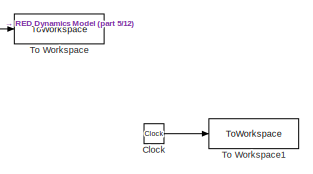
[diagram: root canvas - part 1/12, top center region]
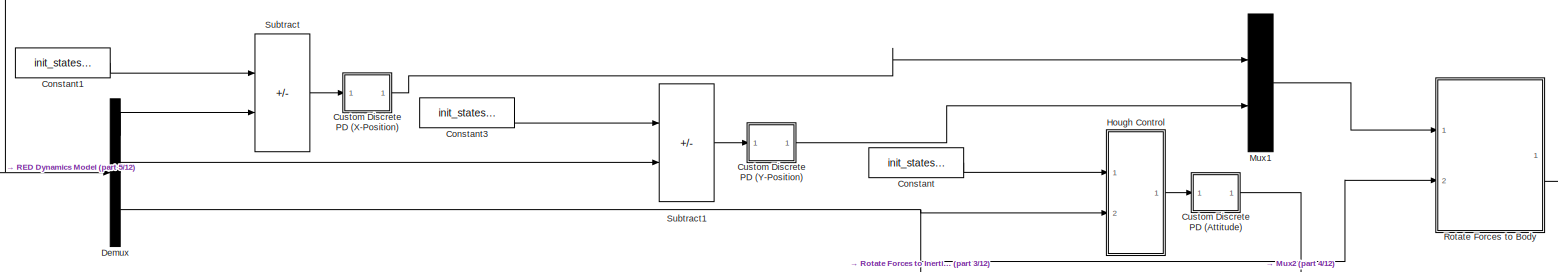
[diagram: root canvas - part 2/12, top left region]
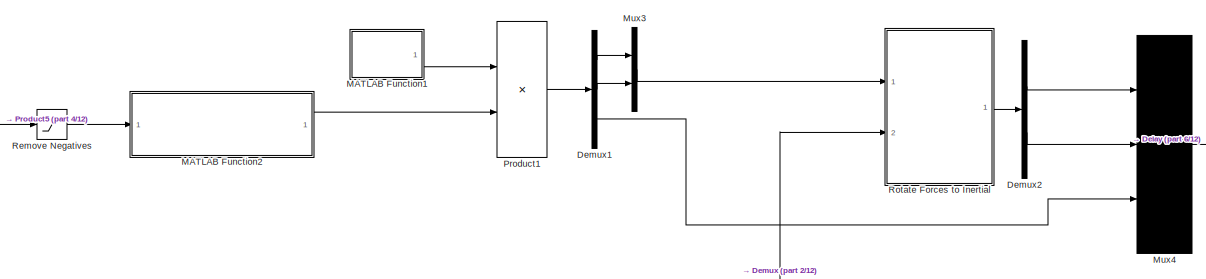
[diagram: root canvas - part 3/12, top right region]
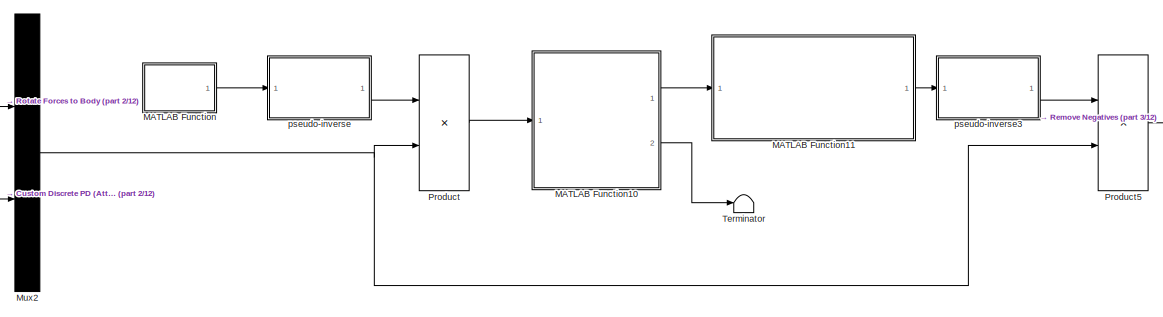
[diagram: root canvas - part 4/12, top center region]
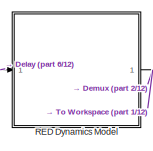
[diagram: root canvas - part 5/12, top left region]
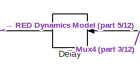
[diagram: root canvas - part 6/12, central region]
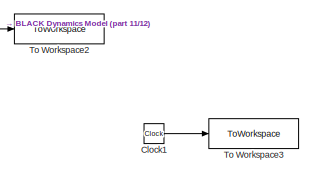
[diagram: root canvas - part 7/12, central region]
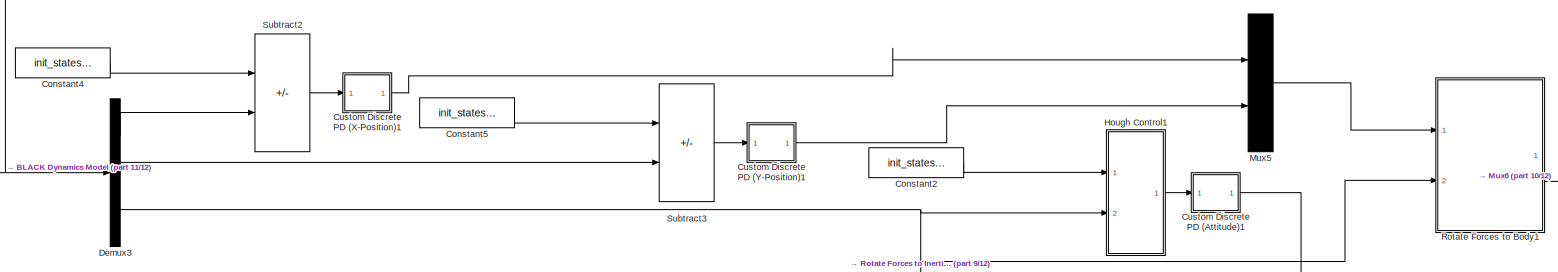
[diagram: root canvas - part 8/12, bottom left region]
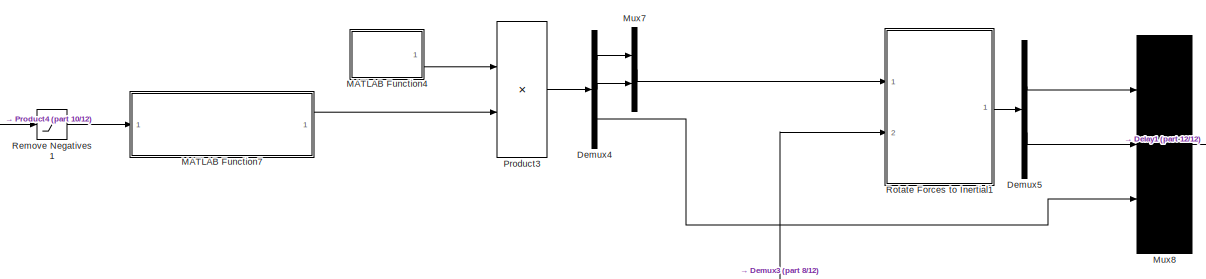
[diagram: root canvas - part 9/12, bottom right region]
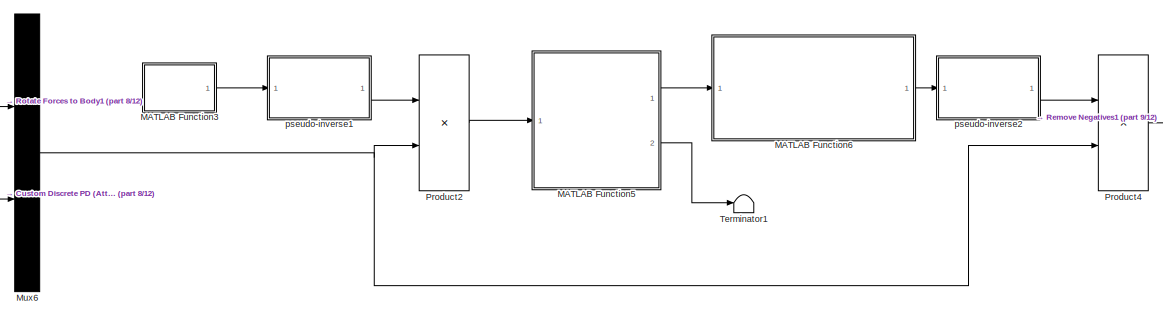
[diagram: root canvas - part 10/12, bottom center region]
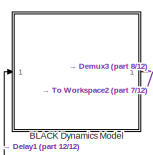
[diagram: root canvas - part 11/12, bottom left region]
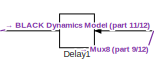
[diagram: root canvas - part 12/12, bottom center region]
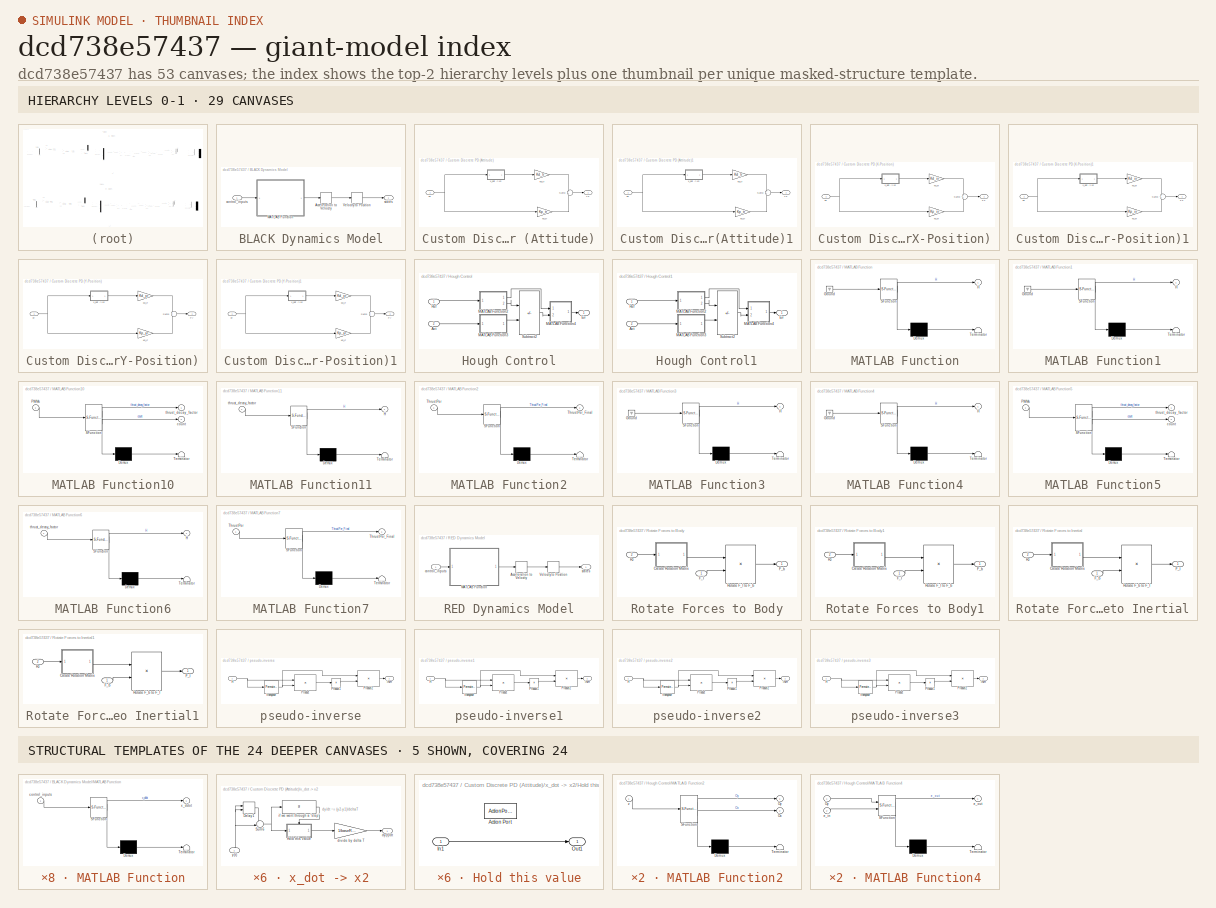
[diagram: thumbnail index - top-2 hierarchy levels (29 canvases) + 5 structural-template representatives of the remaining 24 canvases]
MODEL slx_dcd738e57437
KIND model
CONFIG AbsTol = auto
CONFIG EnableMultiTasking = off
CONFIG FixedStep = baseRate
CONFIG MaxStep = auto
CONFIG MinStep = auto
CONFIG RelTol = 1e-3
CONFIG SampleTimeConstraint = Unconstrained
CONFIG Solver = FixedStepAuto
CONFIG SolverName = FixedStepAuto
CONFIG StartTime = 0.0
CONFIG StopTime = tsim
BLOCK [SubSystem] BLACK Dynamics Model
  Ports = [1, 1]
  RequestExecContextInheritance = off
  SystemSampleTime = serverRate
BLOCK [DiscreteIntegrator] BLACK Dynamics Model/Acceleration to Velocity
  ICPrevOutput = DiscIntNeverNeededParam
  ICPrevScaledInput = DiscIntNeverNeededParam
  InitialConditionSetting = Auto
  IntegratorMethod = Integration: Backward Euler
  Ports = [1, 1]
  SampleTime = -1
BLOCK [SubSystem] BLACK Dynamics Model/MATLAB Function
  ErrorFcn = Stateflow.Translate.translate
  PermitHierarchicalResolution = ExplicitOnly
  Ports = [1, 1]
  RequestExecContextInheritance = off
  SFBlockType = MATLAB Function
  TreatAsAtomicUnit = on
BLOCK [Demux] BLACK Dynamics Model/MATLAB Function/ Demux 
  Outputs = 1
  Ports = [1, 1]
BLOCK [S-Function] BLACK Dynamics Model/MATLAB Function/ SFunction 
  EnableBusSupport = on
  FunctionName = sf_sfun
  Parameters = model_param
  PortCounts = [1 2]
  Ports = [1, 2]
  SFcnIsStateOwnerBlock = off
  SFunctionDeploymentMode = off
  Tag = Stateflow S-Function 16
BLOCK [Terminator] BLACK Dynamics Model/MATLAB Function/ Terminator 
BLOCK [Inport] BLACK Dynamics Model/MATLAB Function/control_inputs
BLOCK [Outport] BLACK Dynamics Model/MATLAB Function/x_ddot
  VectorParamsAs1DForOutWhenUnconnected = off
BLOCK [DiscreteIntegrator] BLACK Dynamics Model/Velocity to Position
  ICPrevOutput = DiscIntNeverNeededParam
  ICPrevScaledInput = DiscIntNeverNeededParam
  InitialCondition = drop_states_BLACK
  InitialConditionSetting = Auto
  IntegratorMethod = Integration: Backward Euler
  Ports = [1, 1]
  SampleTime = -1
BLOCK [Inport] BLACK Dynamics Model/control_inputs
BLOCK [Outport] BLACK Dynamics Model/states
  VectorParamsAs1DForOutWhenUnconnected = off
BLOCK [Clock] Clock
BLOCK [Clock] Clock1
BLOCK [Constant] Constant
  Value = init_states_RED(3)
BLOCK [Constant] Constant1
  Value = init_states_RED(1)
BLOCK [Constant] Constant2
  Value = init_states_RED(3)
BLOCK [Constant] Constant3
  Value = init_states_RED(2)
BLOCK [Constant] Constant4
  Value = init_states_RED(1)
BLOCK [Constant] Constant5
  Value = init_states_RED(2)
BLOCK [SubSystem] Custom Discrete PD (Attitude)
  Ports = [1, 1]
  RequestExecContextInheritance = off
BLOCK [Sum] Custom Discrete PD (Attitude)/Sum3
  NameLocation = top
  Ports = [2, 1]
BLOCK [Outport] Custom Discrete PD (Attitude)/Tz
  VectorParamsAs1DForOutWhenUnconnected = off
BLOCK [Inport] Custom Discrete PD (Attitude)/ez
BLOCK [Gain] Custom Discrete PD (Attitude)/kd_tr
  Gain = Kd_tr
BLOCK [Gain] Custom Discrete PD (Attitude)/kp_tr
  Gain = Kp_tr
BLOCK [SubSystem] Custom Discrete PD (Attitude)/x_dot -> x2
  Ports = [1, 1]
  RequestExecContextInheritance = off
BLOCK [Delay] Custom Discrete PD (Attitude)/x_dot -> x2/Delay1
  DelayLength = 1
  InitialConditionSource = Input port
  InputPortMap = u0,p4
  Ports = [2, 1]
BLOCK [SubSystem] Custom Discrete PD (Attitude)/x_dot -> x2/Hold this value
  Ports = [1, 1, 0, 0, 0, 0, 0, 1]
  RequestExecContextInheritance = off
  TreatAsAtomicUnit = on
BLOCK [ActionPort] Custom Discrete PD (Attitude)/x_dot -> x2/Hold this value/Action Port
  ActionPortLabel = if(u1 ~= 0)
BLOCK [Inport] Custom Discrete PD (Attitude)/x_dot -> x2/Hold this value/In1
BLOCK [Outport] Custom Discrete PD (Attitude)/x_dot -> x2/Hold this value/Out1
  VectorParamsAs1DForOutWhenUnconnected = off
BLOCK [Sum] Custom Discrete PD (Attitude)/x_dot -> x2/Sum6
  Inputs = -+|
  NameLocation = top
  Ports = [2, 1]
BLOCK [Gain] Custom Discrete PD (Attitude)/x_dot -> x2/divide by delta T
  Gain = 1/baseRate
BLOCK [Outport] Custom Discrete PD (Attitude)/x_dot -> x2/dy(t)//dt
  VectorParamsAs1DForOutWhenUnconnected = off
BLOCK [If] Custom Discrete PD (Attitude)/x_dot -> x2/if we went through a "step"
  IfExpression = u1 ~= 0
  Ports = [1, 1]
  ShowElse = off
BLOCK [Inport] Custom Discrete PD (Attitude)/x_dot -> x2/y(t)
  NameLocation = right
BLOCK [SubSystem] Custom Discrete PD (Attitude)1
  Ports = [1, 1]
  RequestExecContextInheritance = off
BLOCK [Sum] Custom Discrete PD (Attitude)1/Sum3
  NameLocation = top
  Ports = [2, 1]
BLOCK [Outport] Custom Discrete PD (Attitude)1/Tz
  VectorParamsAs1DForOutWhenUnconnected = off
BLOCK [Inport] Custom Discrete PD (Attitude)1/ez
BLOCK [Gain] Custom Discrete PD (Attitude)1/kd_tr
  Gain = Kd_tr
BLOCK [Gain] Custom Discrete PD (Attitude)1/kp_tr
  Gain = Kp_tr
BLOCK [SubSystem] Custom Discrete PD (Attitude)1/x_dot -> x2
  Ports = [1, 1]
  RequestExecContextInheritance = off
BLOCK [Delay] Custom Discrete PD (Attitude)1/x_dot -> x2/Delay1
  DelayLength = 1
  InitialConditionSource = Input port
  InputPortMap = u0,p4
  Ports = [2, 1]
BLOCK [SubSystem] Custom Discrete PD (Attitude)1/x_dot -> x2/Hold this value
  Ports = [1, 1, 0, 0, 0, 0, 0, 1]
  RequestExecContextInheritance = off
  TreatAsAtomicUnit = on
BLOCK [ActionPort] Custom Discrete PD (Attitude)1/x_dot -> x2/Hold this value/Action Port
  ActionPortLabel = if(u1 ~= 0)
BLOCK [Inport] Custom Discrete PD (Attitude)1/x_dot -> x2/Hold this value/In1
BLOCK [Outport] Custom Discrete PD (Attitude)1/x_dot -> x2/Hold this value/Out1
  VectorParamsAs1DForOutWhenUnconnected = off
BLOCK [Sum] Custom Discrete PD (Attitude)1/x_dot -> x2/Sum6
  Inputs = -+|
  NameLocation = top
  Ports = [2, 1]
BLOCK [Gain] Custom Discrete PD (Attitude)1/x_dot -> x2/divide by delta T
  Gain = 1/baseRate
BLOCK [Outport] Custom Discrete PD (Attitude)1/x_dot -> x2/dy(t)//dt
  VectorParamsAs1DForOutWhenUnconnected = off
BLOCK [If] Custom Discrete PD (Attitude)1/x_dot -> x2/if we went through a "step"
  IfExpression = u1 ~= 0
  Ports = [1, 1]
  ShowElse = off
BLOCK [Inport] Custom Discrete PD (Attitude)1/x_dot -> x2/y(t)
  NameLocation = right
BLOCK [SubSystem] Custom Discrete PD (X-Position)
  Ports = [1, 1]
  RequestExecContextInheritance = off
BLOCK [Outport] Custom Discrete PD (X-Position)/Fx
  VectorParamsAs1DForOutWhenUnconnected = off
BLOCK [Sum] Custom Discrete PD (X-Position)/Sum3
  NameLocation = top
  Ports = [2, 1]
BLOCK [Inport] Custom Discrete PD (X-Position)/ex
BLOCK [Gain] Custom Discrete PD (X-Position)/kd_xr
  Gain = Kd_xr
BLOCK [Gain] Custom Discrete PD (X-Position)/kp_xr
  Gain = Kp_xr
BLOCK [SubSystem] Custom Discrete PD (X-Position)/x_dot -> x2
  Ports = [1, 1]
  RequestExecContextInheritance = off
BLOCK [Delay] Custom Discrete PD (X-Position)/x_dot -> x2/Delay1
  DelayLength = 1
  InitialConditionSource = Input port
  InputPortMap = u0,p4
  Ports = [2, 1]
BLOCK [SubSystem] Custom Discrete PD (X-Position)/x_dot -> x2/Hold this value
  Ports = [1, 1, 0, 0, 0, 0, 0, 1]
  RequestExecContextInheritance = off
  TreatAsAtomicUnit = on
BLOCK [ActionPort] Custom Discrete PD (X-Position)/x_dot -> x2/Hold this value/Action Port
  ActionPortLabel = if(u1 ~= 0)
BLOCK [Inport] Custom Discrete PD (X-Position)/x_dot -> x2/Hold this value/In1
BLOCK [Outport] Custom Discrete PD (X-Position)/x_dot -> x2/Hold this value/Out1
  VectorParamsAs1DForOutWhenUnconnected = off
BLOCK [Sum] Custom Discrete PD (X-Position)/x_dot -> x2/Sum6
  Inputs = -+|
  NameLocation = top
  Ports = [2, 1]
BLOCK [Gain] Custom Discrete PD (X-Position)/x_dot -> x2/divide by delta T
  Gain = 1/baseRate
BLOCK [Outport] Custom Discrete PD (X-Position)/x_dot -> x2/dy(t)//dt
  VectorParamsAs1DForOutWhenUnconnected = off
BLOCK [If] Custom Discrete PD (X-Position)/x_dot -> x2/if we went through a "step"
  IfExpression = u1 ~= 0
  Ports = [1, 1]
  ShowElse = off
BLOCK [Inport] Custom Discrete PD (X-Position)/x_dot -> x2/y(t)
  NameLocation = right
BLOCK [SubSystem] Custom Discrete PD (X-Position)1
  Ports = [1, 1]
  RequestExecContextInheritance = off
BLOCK [Outport] Custom Discrete PD (X-Position)1/Fx
  VectorParamsAs1DForOutWhenUnconnected = off
BLOCK [Sum] Custom Discrete PD (X-Position)1/Sum3
  NameLocation = top
  Ports = [2, 1]
BLOCK [Inport] Custom Discrete PD (X-Position)1/ex
BLOCK [Gain] Custom Discrete PD (X-Position)1/kd_xr
  Gain = Kd_xr
BLOCK [Gain] Custom Discrete PD (X-Position)1/kp_xr
  Gain = Kp_xr
BLOCK [SubSystem] Custom Discrete PD (X-Position)1/x_dot -> x2
  Ports = [1, 1]
  RequestExecContextInheritance = off
BLOCK [Delay] Custom Discrete PD (X-Position)1/x_dot -> x2/Delay1
  DelayLength = 1
  InitialConditionSource = Input port
  InputPortMap = u0,p4
  Ports = [2, 1]
BLOCK [SubSystem] Custom Discrete PD (X-Position)1/x_dot -> x2/Hold this value
  Ports = [1, 1, 0, 0, 0, 0, 0, 1]
  RequestExecContextInheritance = off
  TreatAsAtomicUnit = on
BLOCK [ActionPort] Custom Discrete PD (X-Position)1/x_dot -> x2/Hold this value/Action Port
  ActionPortLabel = if(u1 ~= 0)
BLOCK [Inport] Custom Discrete PD (X-Position)1/x_dot -> x2/Hold this value/In1
BLOCK [Outport] Custom Discrete PD (X-Position)1/x_dot -> x2/Hold this value/Out1
  VectorParamsAs1DForOutWhenUnconnected = off
BLOCK [Sum] Custom Discrete PD (X-Position)1/x_dot -> x2/Sum6
  Inputs = -+|
  NameLocation = top
  Ports = [2, 1]
BLOCK [Gain] Custom Discrete PD (X-Position)1/x_dot -> x2/divide by delta T
  Gain = 1/baseRate
BLOCK [Outport] Custom Discrete PD (X-Position)1/x_dot -> x2/dy(t)//dt
  VectorParamsAs1DForOutWhenUnconnected = off
BLOCK [If] Custom Discrete PD (X-Position)1/x_dot -> x2/if we went through a "step"
  IfExpression = u1 ~= 0
  Ports = [1, 1]
  ShowElse = off
BLOCK [Inport] Custom Discrete PD (X-Position)1/x_dot -> x2/y(t)
  NameLocation = right
BLOCK [SubSystem] Custom Discrete PD (Y-Position)
  Ports = [1, 1]
  RequestExecContextInheritance = off
BLOCK [Outport] Custom Discrete PD (Y-Position)/Fy
  VectorParamsAs1DForOutWhenUnconnected = off
BLOCK [Sum] Custom Discrete PD (Y-Position)/Sum3
  NameLocation = top
  Ports = [2, 1]
BLOCK [Inport] Custom Discrete PD (Y-Position)/ey
BLOCK [Gain] Custom Discrete PD (Y-Position)/kd_yr
  Gain = Kd_yr
BLOCK [Gain] Custom Discrete PD (Y-Position)/kp_yr
  Gain = Kp_yr
BLOCK [SubSystem] Custom Discrete PD (Y-Position)/x_dot -> x2
  Ports = [1, 1]
  RequestExecContextInheritance = off
BLOCK [Delay] Custom Discrete PD (Y-Position)/x_dot -> x2/Delay1
  DelayLength = 1
  InitialConditionSource = Input port
  InputPortMap = u0,p4
  Ports = [2, 1]
BLOCK [SubSystem] Custom Discrete PD (Y-Position)/x_dot -> x2/Hold this value
  Ports = [1, 1, 0, 0, 0, 0, 0, 1]
  RequestExecContextInheritance = off
  TreatAsAtomicUnit = on
BLOCK [ActionPort] Custom Discrete PD (Y-Position)/x_dot -> x2/Hold this value/Action Port
  ActionPortLabel = if(u1 ~= 0)
BLOCK [Inport] Custom Discrete PD (Y-Position)/x_dot -> x2/Hold this value/In1
BLOCK [Outport] Custom Discrete PD (Y-Position)/x_dot -> x2/Hold this value/Out1
  VectorParamsAs1DForOutWhenUnconnected = off
BLOCK [Sum] Custom Discrete PD (Y-Position)/x_dot -> x2/Sum6
  Inputs = -+|
  NameLocation = top
  Ports = [2, 1]
BLOCK [Gain] Custom Discrete PD (Y-Position)/x_dot -> x2/divide by delta T
  Gain = 1/baseRate
BLOCK [Outport] Custom Discrete PD (Y-Position)/x_dot -> x2/dy(t)//dt
  VectorParamsAs1DForOutWhenUnconnected = off
BLOCK [If] Custom Discrete PD (Y-Position)/x_dot -> x2/if we went through a "step"
  IfExpression = u1 ~= 0
  Ports = [1, 1]
  ShowElse = off
BLOCK [Inport] Custom Discrete PD (Y-Position)/x_dot -> x2/y(t)
  NameLocation = right
BLOCK [SubSystem] Custom Discrete PD (Y-Position)1
  Ports = [1, 1]
  RequestExecContextInheritance = off
BLOCK [Outport] Custom Discrete PD (Y-Position)1/Fy
  VectorParamsAs1DForOutWhenUnconnected = off
BLOCK [Sum] Custom Discrete PD (Y-Position)1/Sum3
  NameLocation = top
  Ports = [2, 1]
BLOCK [Inport] Custom Discrete PD (Y-Position)1/ey
BLOCK [Gain] Custom Discrete PD (Y-Position)1/kd_yr
  Gain = Kd_yr
BLOCK [Gain] Custom Discrete PD (Y-Position)1/kp_yr
  Gain = Kp_yr
BLOCK [SubSystem] Custom Discrete PD (Y-Position)1/x_dot -> x2
  Ports = [1, 1]
  RequestExecContextInheritance = off
BLOCK [Delay] Custom Discrete PD (Y-Position)1/x_dot -> x2/Delay1
  DelayLength = 1
  InitialConditionSource = Input port
  InputPortMap = u0,p4
  Ports = [2, 1]
BLOCK [SubSystem] Custom Discrete PD (Y-Position)1/x_dot -> x2/Hold this value
  Ports = [1, 1, 0, 0, 0, 0, 0, 1]
  RequestExecContextInheritance = off
  TreatAsAtomicUnit = on
BLOCK [ActionPort] Custom Discrete PD (Y-Position)1/x_dot -> x2/Hold this value/Action Port
  ActionPortLabel = if(u1 ~= 0)
BLOCK [Inport] Custom Discrete PD (Y-Position)1/x_dot -> x2/Hold this value/In1
BLOCK [Outport] Custom Discrete PD (Y-Position)1/x_dot -> x2/Hold this value/Out1
  VectorParamsAs1DForOutWhenUnconnected = off
BLOCK [Sum] Custom Discrete PD (Y-Position)1/x_dot -> x2/Sum6
  Inputs = -+|
  NameLocation = top
  Ports = [2, 1]
BLOCK [Gain] Custom Discrete PD (Y-Position)1/x_dot -> x2/divide by delta T
  Gain = 1/baseRate
BLOCK [Outport] Custom Discrete PD (Y-Position)1/x_dot -> x2/dy(t)//dt
  VectorParamsAs1DForOutWhenUnconnected = off
BLOCK [If] Custom Discrete PD (Y-Position)1/x_dot -> x2/if we went through a "step"
  IfExpression = u1 ~= 0
  Ports = [1, 1]
  ShowElse = off
BLOCK [Inport] Custom Discrete PD (Y-Position)1/x_dot -> x2/y(t)
  NameLocation = right
BLOCK [Delay] Delay
  DelayLength = 1
  InputPortMap = u0
  Ports = [1, 1]
BLOCK [Delay] Delay1
  DelayLength = 1
  InputPortMap = u0
  Ports = [1, 1]
BLOCK [Demux] Demux
  Outputs = 3
  Ports = [1, 3]
BLOCK [Demux] Demux1
  Outputs = 3
  Ports = [1, 3]
BLOCK [Demux] Demux2
  Outputs = 2
  Ports = [1, 2]
BLOCK [Demux] Demux3
  Outputs = 3
  Ports = [1, 3]
BLOCK [Demux] Demux4
  Outputs = 3
  Ports = [1, 3]
BLOCK [Demux] Demux5
  Outputs = 2
  Ports = [1, 2]
BLOCK [SubSystem] Hough Control
  Ports = [2, 1]
  RequestExecContextInheritance = off
BLOCK [Inport] Hough Control/Act
  Port = 2
BLOCK [Outport] Hough Control/Err
  VectorParamsAs1DForOutWhenUnconnected = off
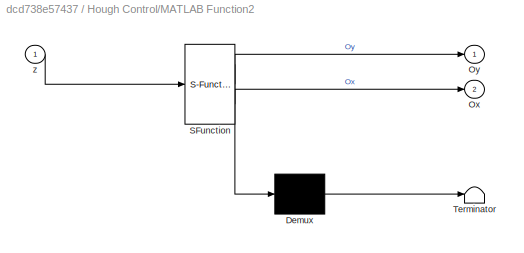
BLOCK [SubSystem] Hough Control/MATLAB Function2
  ErrorFcn = Stateflow.Translate.translate
  PermitHierarchicalResolution = ExplicitOnly
  Ports = [1, 2]
  RequestExecContextInheritance = off
  SFBlockType = MATLAB Function
  TreatAsAtomicUnit = on
BLOCK [Demux] Hough Control/MATLAB Function2/ Demux 
  Outputs = 1
  Ports = [1, 1]
BLOCK [S-Function] Hough Control/MATLAB Function2/ SFunction 
  EnableBusSupport = on
  FunctionName = sf_sfun
  PortCounts = [1 3]
  Ports = [1, 3]
  SFcnIsStateOwnerBlock = off
  SFunctionDeploymentMode = off
  Tag = Stateflow S-Function 27
BLOCK [Terminator] Hough Control/MATLAB Function2/ Terminator 
BLOCK [Outport] Hough Control/MATLAB Function2/Ox
  Port = 2
  VectorParamsAs1DForOutWhenUnconnected = off
BLOCK [Outport] Hough Control/MATLAB Function2/Oy
  VectorParamsAs1DForOutWhenUnconnected = off
BLOCK [Inport] Hough Control/MATLAB Function2/z
BLOCK [SubSystem] Hough Control/MATLAB Function3
  ErrorFcn = Stateflow.Translate.translate
  PermitHierarchicalResolution = ExplicitOnly
  Ports = [1, 1]
  RequestExecContextInheritance = off
  SFBlockType = MATLAB Function
  TreatAsAtomicUnit = on
BLOCK [Demux] Hough Control/MATLAB Function3/ Demux 
  Outputs = 1
  Ports = [1, 1]
BLOCK [S-Function] Hough Control/MATLAB Function3/ SFunction 
  EnableBusSupport = on
  FunctionName = sf_sfun
  PortCounts = [1 2]
  Ports = [1, 2]
  SFcnIsStateOwnerBlock = off
  SFunctionDeploymentMode = off
  Tag = Stateflow S-Function 28
BLOCK [Terminator] Hough Control/MATLAB Function3/ Terminator 
BLOCK [Outport] Hough Control/MATLAB Function3/Ox
  VectorParamsAs1DForOutWhenUnconnected = off
BLOCK [Inport] Hough Control/MATLAB Function3/z
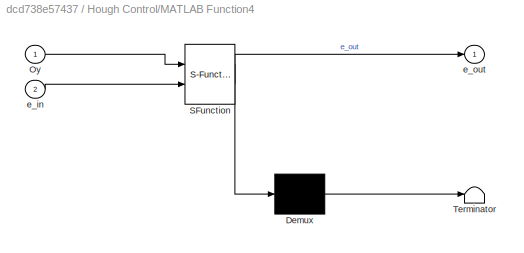
BLOCK [SubSystem] Hough Control/MATLAB Function4
  ErrorFcn = Stateflow.Translate.translate
  PermitHierarchicalResolution = ExplicitOnly
  Ports = [2, 1]
  RequestExecContextInheritance = off
  SFBlockType = MATLAB Function
  TreatAsAtomicUnit = on
BLOCK [Demux] Hough Control/MATLAB Function4/ Demux 
  Outputs = 1
  Ports = [1, 1]
BLOCK [S-Function] Hough Control/MATLAB Function4/ SFunction 
  EnableBusSupport = on
  FunctionName = sf_sfun
  PortCounts = [2 2]
  Ports = [2, 2]
  SFcnIsStateOwnerBlock = off
  SFunctionDeploymentMode = off
  Tag = Stateflow S-Function 29
BLOCK [Terminator] Hough Control/MATLAB Function4/ Terminator 
BLOCK [Inport] Hough Control/MATLAB Function4/Oy
BLOCK [Inport] Hough Control/MATLAB Function4/e_in
  Port = 2
BLOCK [Outport] Hough Control/MATLAB Function4/e_out
  VectorParamsAs1DForOutWhenUnconnected = off
BLOCK [Inport] Hough Control/Ref
BLOCK [Sum] Hough Control/Subtract2
  IconShape = rectangular
  Inputs = +-
  Ports = [2, 1]
BLOCK [SubSystem] Hough Control1
  Ports = [2, 1]
  RequestExecContextInheritance = off
BLOCK [Inport] Hough Control1/Act
  Port = 2
BLOCK [Outport] Hough Control1/Err
  VectorParamsAs1DForOutWhenUnconnected = off
BLOCK [SubSystem] Hough Control1/MATLAB Function2
  ErrorFcn = Stateflow.Translate.translate
  PermitHierarchicalResolution = ExplicitOnly
  Ports = [1, 2]
  RequestExecContextInheritance = off
  SFBlockType = MATLAB Function
  TreatAsAtomicUnit = on
BLOCK [Demux] Hough Control1/MATLAB Function2/ Demux 
  Outputs = 1
  Ports = [1, 1]
BLOCK [S-Function] Hough Control1/MATLAB Function2/ SFunction 
  EnableBusSupport = on
  FunctionName = sf_sfun
  PortCounts = [1 3]
  Ports = [1, 3]
  SFcnIsStateOwnerBlock = off
  SFunctionDeploymentMode = off
  Tag = Stateflow S-Function 8
BLOCK [Terminator] Hough Control1/MATLAB Function2/ Terminator 
BLOCK [Outport] Hough Control1/MATLAB Function2/Ox
  Port = 2
  VectorParamsAs1DForOutWhenUnconnected = off
BLOCK [Outport] Hough Control1/MATLAB Function2/Oy
  VectorParamsAs1DForOutWhenUnconnected = off
BLOCK [Inport] Hough Control1/MATLAB Function2/z
BLOCK [SubSystem] Hough Control1/MATLAB Function3
  ErrorFcn = Stateflow.Translate.translate
  PermitHierarchicalResolution = ExplicitOnly
  Ports = [1, 1]
  RequestExecContextInheritance = off
  SFBlockType = MATLAB Function
  TreatAsAtomicUnit = on
BLOCK [Demux] Hough Control1/MATLAB Function3/ Demux 
  Outputs = 1
  Ports = [1, 1]
BLOCK [S-Function] Hough Control1/MATLAB Function3/ SFunction 
  EnableBusSupport = on
  FunctionName = sf_sfun
  PortCounts = [1 2]
  Ports = [1, 2]
  SFcnIsStateOwnerBlock = off
  SFunctionDeploymentMode = off
  Tag = Stateflow S-Function 9
BLOCK [Terminator] Hough Control1/MATLAB Function3/ Terminator 
BLOCK [Outport] Hough Control1/MATLAB Function3/Ox
  VectorParamsAs1DForOutWhenUnconnected = off
BLOCK [Inport] Hough Control1/MATLAB Function3/z
BLOCK [SubSystem] Hough Control1/MATLAB Function4
  ErrorFcn = Stateflow.Translate.translate
  PermitHierarchicalResolution = ExplicitOnly
  Ports = [2, 1]
  RequestExecContextInheritance = off
  SFBlockType = MATLAB Function
  TreatAsAtomicUnit = on
BLOCK [Demux] Hough Control1/MATLAB Function4/ Demux 
  Outputs = 1
  Ports = [1, 1]
BLOCK [S-Function] Hough Control1/MATLAB Function4/ SFunction 
  EnableBusSupport = on
  FunctionName = sf_sfun
  PortCounts = [2 2]
  Ports = [2, 2]
  SFcnIsStateOwnerBlock = off
  SFunctionDeploymentMode = off
  Tag = Stateflow S-Function 10
BLOCK [Terminator] Hough Control1/MATLAB Function4/ Terminator 
BLOCK [Inport] Hough Control1/MATLAB Function4/Oy
BLOCK [Inport] Hough Control1/MATLAB Function4/e_in
  Port = 2
BLOCK [Outport] Hough Control1/MATLAB Function4/e_out
  VectorParamsAs1DForOutWhenUnconnected = off
BLOCK [Inport] Hough Control1/Ref
BLOCK [Sum] Hough Control1/Subtract2
  IconShape = rectangular
  Inputs = +-
  Ports = [2, 1]
BLOCK [SubSystem] MATLAB Function
  ErrorFcn = Stateflow.Translate.translate
  PermitHierarchicalResolution = ExplicitOnly
  Ports = [0, 1]
  RequestExecContextInheritance = off
  SFBlockType = MATLAB Function
  TreatAsAtomicUnit = on
BLOCK [Demux] MATLAB Function/ Demux 
  Outputs = 1
  Ports = [1, 1]
BLOCK [Ground] MATLAB Function/ Ground 
BLOCK [S-Function] MATLAB Function/ SFunction 
  EnableBusSupport = on
  FunctionName = sf_sfun
  Parameters = F_thrusters_RED,thruster_dist2CG_RED
  PortCounts = [1 2]
  Ports = [1, 2]
  SFcnIsStateOwnerBlock = off
  SFunctionDeploymentMode = off
  Tag = Stateflow S-Function 1
BLOCK [Terminator] MATLAB Function/ Terminator 
BLOCK [Outport] MATLAB Function/H
  VectorParamsAs1DForOutWhenUnconnected = off
BLOCK [SubSystem] MATLAB Function1
  ErrorFcn = Stateflow.Translate.translate
  PermitHierarchicalResolution = ExplicitOnly
  Ports = [0, 1]
  RequestExecContextInheritance = off
  SFBlockType = MATLAB Function
  TreatAsAtomicUnit = on
BLOCK [Demux] MATLAB Function1/ Demux 
  Outputs = 1
  Ports = [1, 1]
BLOCK [Ground] MATLAB Function1/ Ground 
BLOCK [S-Function] MATLAB Function1/ SFunction 
  EnableBusSupport = on
  FunctionName = sf_sfun
  Parameters = F_thrusters_RED,thruster_dist2CG_RED
  PortCounts = [1 2]
  Ports = [1, 2]
  SFcnIsStateOwnerBlock = off
  SFunctionDeploymentMode = off
  Tag = Stateflow S-Function 3
BLOCK [Terminator] MATLAB Function1/ Terminator 
BLOCK [Outport] MATLAB Function1/H
  VectorParamsAs1DForOutWhenUnconnected = off
BLOCK [SubSystem] MATLAB Function10
  ErrorFcn = Stateflow.Translate.translate
  PermitHierarchicalResolution = ExplicitOnly
  Ports = [1, 2]
  RequestExecContextInheritance = off
  SFBlockType = MATLAB Function
  TreatAsAtomicUnit = on
BLOCK [Demux] MATLAB Function10/ Demux 
  Outputs = 1
  Ports = [1, 1]
BLOCK [S-Function] MATLAB Function10/ SFunction 
  EnableBusSupport = on
  FunctionName = sf_sfun
  Parameters = thruster_count_threshold
  PortCounts = [1 3]
  Ports = [1, 3]
  SFcnIsStateOwnerBlock = off
  SFunctionDeploymentMode = off
  Tag = Stateflow S-Function 4
BLOCK [Terminator] MATLAB Function10/ Terminator 
BLOCK [Inport] MATLAB Function10/PWMs
BLOCK [Outport] MATLAB Function10/count
  Port = 2
BLOCK [Outport] MATLAB Function10/thrust_decay_factor
  VectorParamsAs1DForOutWhenUnconnected = off
BLOCK [SubSystem] MATLAB Function11
  ErrorFcn = Stateflow.Translate.translate
  PermitHierarchicalResolution = ExplicitOnly
  Ports = [1, 1]
  RequestExecContextInheritance = off
  SFBlockType = MATLAB Function
  TreatAsAtomicUnit = on
BLOCK [Demux] MATLAB Function11/ Demux 
  Outputs = 1
  Ports = [1, 1]
BLOCK [S-Function] MATLAB Function11/ SFunction 
  EnableBusSupport = on
  FunctionName = sf_sfun
  Parameters = F_RED_X_nominal,F_RED_Y_nominal,thruster_dist2CG_RED
  PortCounts = [1 2]
  Ports = [1, 2]
  SFcnIsStateOwnerBlock = off
  SFunctionDeploymentMode = off
  Tag = Stateflow S-Function 5
BLOCK [Terminator] MATLAB Function11/ Terminator 
BLOCK [Outport] MATLAB Function11/H
  VectorParamsAs1DForOutWhenUnconnected = off
BLOCK [Inport] MATLAB Function11/thrust_decay_factor
BLOCK [SubSystem] MATLAB Function2
  ErrorFcn = Stateflow.Translate.translate
  PermitHierarchicalResolution = ExplicitOnly
  Ports = [1, 1]
  RequestExecContextInheritance = off
  SFBlockType = MATLAB Function
  TreatAsAtomicUnit = on
BLOCK [Demux] MATLAB Function2/ Demux 
  Outputs = 1
  Ports = [1, 1]
BLOCK [S-Function] MATLAB Function2/ SFunction 
  EnableBusSupport = on
  FunctionName = sf_sfun
  PortCounts = [1 2]
  Ports = [1, 2]
  SFcnIsStateOwnerBlock = off
  SFunctionDeploymentMode = off
  Tag = Stateflow S-Function 6
BLOCK [Terminator] MATLAB Function2/ Terminator 
BLOCK [Inport] MATLAB Function2/ThrustPer
BLOCK [Outport] MATLAB Function2/ThrustPer_Final
  VectorParamsAs1DForOutWhenUnconnected = off
BLOCK [SubSystem] MATLAB Function3
  ErrorFcn = Stateflow.Translate.translate
  PermitHierarchicalResolution = ExplicitOnly
  Ports = [0, 1]
  RequestExecContextInheritance = off
  SFBlockType = MATLAB Function
  TreatAsAtomicUnit = on
BLOCK [Demux] MATLAB Function3/ Demux 
  Outputs = 1
  Ports = [1, 1]
BLOCK [Ground] MATLAB Function3/ Ground 
BLOCK [S-Function] MATLAB Function3/ SFunction 
  EnableBusSupport = on
  FunctionName = sf_sfun
  Parameters = F_thrusters_BLACK,thruster_dist2CG_BLACK
  PortCounts = [1 2]
  Ports = [1, 2]
  SFcnIsStateOwnerBlock = off
  SFunctionDeploymentMode = off
  Tag = Stateflow S-Function 11
BLOCK [Terminator] MATLAB Function3/ Terminator 
BLOCK [Outport] MATLAB Function3/H
  VectorParamsAs1DForOutWhenUnconnected = off
BLOCK [SubSystem] MATLAB Function4
  ErrorFcn = Stateflow.Translate.translate
  PermitHierarchicalResolution = ExplicitOnly
  Ports = [0, 1]
  RequestExecContextInheritance = off
  SFBlockType = MATLAB Function
  TreatAsAtomicUnit = on
BLOCK [Demux] MATLAB Function4/ Demux 
  Outputs = 1
  Ports = [1, 1]
BLOCK [Ground] MATLAB Function4/ Ground 
BLOCK [S-Function] MATLAB Function4/ SFunction 
  EnableBusSupport = on
  FunctionName = sf_sfun
  Parameters = F_thrusters_BLACK,thruster_dist2CG_BLACK
  PortCounts = [1 2]
  Ports = [1, 2]
  SFcnIsStateOwnerBlock = off
  SFunctionDeploymentMode = off
  Tag = Stateflow S-Function 12
BLOCK [Terminator] MATLAB Function4/ Terminator 
BLOCK [Outport] MATLAB Function4/H
  VectorParamsAs1DForOutWhenUnconnected = off
BLOCK [SubSystem] MATLAB Function5
  ErrorFcn = Stateflow.Translate.translate
  PermitHierarchicalResolution = ExplicitOnly
  Ports = [1, 2]
  RequestExecContextInheritance = off
  SFBlockType = MATLAB Function
  TreatAsAtomicUnit = on
BLOCK [Demux] MATLAB Function5/ Demux 
  Outputs = 1
  Ports = [1, 1]
BLOCK [S-Function] MATLAB Function5/ SFunction 
  EnableBusSupport = on
  FunctionName = sf_sfun
  Parameters = thruster_count_threshold
  PortCounts = [1 3]
  Ports = [1, 3]
  SFcnIsStateOwnerBlock = off
  SFunctionDeploymentMode = off
  Tag = Stateflow S-Function 13
BLOCK [Terminator] MATLAB Function5/ Terminator 
BLOCK [Inport] MATLAB Function5/PWMs
BLOCK [Outport] MATLAB Function5/count
  Port = 2
BLOCK [Outport] MATLAB Function5/thrust_decay_factor
  VectorParamsAs1DForOutWhenUnconnected = off
BLOCK [SubSystem] MATLAB Function6
  ErrorFcn = Stateflow.Translate.translate
  PermitHierarchicalResolution = ExplicitOnly
  Ports = [1, 1]
  RequestExecContextInheritance = off
  SFBlockType = MATLAB Function
  TreatAsAtomicUnit = on
BLOCK [Demux] MATLAB Function6/ Demux 
  Outputs = 1
  Ports = [1, 1]
BLOCK [S-Function] MATLAB Function6/ SFunction 
  EnableBusSupport = on
  FunctionName = sf_sfun
  Parameters = F_BLACK_X_nominal,F_BLACK_Y_nominal,thruster_dist2CG_BLACK
  PortCounts = [1 2]
  Ports = [1, 2]
  SFcnIsStateOwnerBlock = off
  SFunctionDeploymentMode = off
  Tag = Stateflow S-Function 14
BLOCK [Terminator] MATLAB Function6/ Terminator 
BLOCK [Outport] MATLAB Function6/H
  VectorParamsAs1DForOutWhenUnconnected = off
BLOCK [Inport] MATLAB Function6/thrust_decay_factor
BLOCK [SubSystem] MATLAB Function7
  ErrorFcn = Stateflow.Translate.translate
  PermitHierarchicalResolution = ExplicitOnly
  Ports = [1, 1]
  RequestExecContextInheritance = off
  SFBlockType = MATLAB Function
  TreatAsAtomicUnit = on
BLOCK [Demux] MATLAB Function7/ Demux 
  Outputs = 1
  Ports = [1, 1]
BLOCK [S-Function] MATLAB Function7/ SFunction 
  EnableBusSupport = on
  FunctionName = sf_sfun
  PortCounts = [1 2]
  Ports = [1, 2]
  SFcnIsStateOwnerBlock = off
  SFunctionDeploymentMode = off
  Tag = Stateflow S-Function 15
BLOCK [Terminator] MATLAB Function7/ Terminator 
BLOCK [Inport] MATLAB Function7/ThrustPer
BLOCK [Outport] MATLAB Function7/ThrustPer_Final
  VectorParamsAs1DForOutWhenUnconnected = off
BLOCK [Mux] Mux1
  DisplayOption = bar
  Inputs = 2
  Ports = [2, 1]
BLOCK [Mux] Mux2
  DisplayOption = bar
  Inputs = 2
  Ports = [2, 1]
BLOCK [Mux] Mux3
  DisplayOption = bar
  Inputs = 2
  Ports = [2, 1]
BLOCK [Mux] Mux4
  DisplayOption = bar
  Inputs = 3
  Ports = [3, 1]
BLOCK [Mux] Mux5
  DisplayOption = bar
  Inputs = 2
  Ports = [2, 1]
BLOCK [Mux] Mux6
  DisplayOption = bar
  Inputs = 2
  Ports = [2, 1]
BLOCK [Mux] Mux7
  DisplayOption = bar
  Inputs = 2
  Ports = [2, 1]
BLOCK [Mux] Mux8
  DisplayOption = bar
  Inputs = 3
  Ports = [3, 1]
BLOCK [Product] Product
  Multiplication = Matrix(*)
  Ports = [2, 1]
BLOCK [Product] Product1
  Multiplication = Matrix(*)
  Ports = [2, 1]
BLOCK [Product] Product2
  Multiplication = Matrix(*)
  Ports = [2, 1]
BLOCK [Product] Product3
  Multiplication = Matrix(*)
  Ports = [2, 1]
BLOCK [Product] Product4
  Multiplication = Matrix(*)
  Ports = [2, 1]
BLOCK [Product] Product5
  Multiplication = Matrix(*)
  Ports = [2, 1]
BLOCK [SubSystem] RED Dynamics Model
  Ports = [1, 1]
  RequestExecContextInheritance = off
  SystemSampleTime = serverRate
BLOCK [DiscreteIntegrator] RED Dynamics Model/Acceleration to Velocity
  ICPrevOutput = DiscIntNeverNeededParam
  ICPrevScaledInput = DiscIntNeverNeededParam
  InitialConditionSetting = Auto
  IntegratorMethod = Integration: Backward Euler
  Ports = [1, 1]
  SampleTime = -1
BLOCK [SubSystem] RED Dynamics Model/MATLAB Function
  ErrorFcn = Stateflow.Translate.translate
  PermitHierarchicalResolution = ExplicitOnly
  Ports = [1, 1]
  RequestExecContextInheritance = off
  SFBlockType = MATLAB Function
  TreatAsAtomicUnit = on
BLOCK [Demux] RED Dynamics Model/MATLAB Function/ Demux 
  Outputs = 1
  Ports = [1, 1]
BLOCK [S-Function] RED Dynamics Model/MATLAB Function/ SFunction 
  EnableBusSupport = on
  FunctionName = sf_sfun
  Parameters = model_param
  PortCounts = [1 2]
  Ports = [1, 2]
  SFcnIsStateOwnerBlock = off
  SFunctionDeploymentMode = off
  Tag = Stateflow S-Function 2
BLOCK [Terminator] RED Dynamics Model/MATLAB Function/ Terminator 
BLOCK [Inport] RED Dynamics Model/MATLAB Function/control_inputs
BLOCK [Outport] RED Dynamics Model/MATLAB Function/x_ddot
  VectorParamsAs1DForOutWhenUnconnected = off
BLOCK [DiscreteIntegrator] RED Dynamics Model/Velocity to Position
  ICPrevOutput = DiscIntNeverNeededParam
  ICPrevScaledInput = DiscIntNeverNeededParam
  InitialCondition = drop_states_RED
  InitialConditionSetting = Auto
  IntegratorMethod = Integration: Backward Euler
  Ports = [1, 1]
  SampleTime = -1
BLOCK [Inport] RED Dynamics Model/control_inputs
BLOCK [Outport] RED Dynamics Model/states
  VectorParamsAs1DForOutWhenUnconnected = off
BLOCK [Saturate] Remove Negatives
  LowerLimit = 0
  UpperLimit = 1000
BLOCK [Saturate] Remove Negatives1
  LowerLimit = 0
  UpperLimit = 1000
BLOCK [SubSystem] Rotate Forces to Body
  Ports = [2, 1]
  RequestExecContextInheritance = off
BLOCK [SubSystem] Rotate Forces to Body/Create Rotation Matrix
  ErrorFcn = Stateflow.Translate.translate
  PermitHierarchicalResolution = ExplicitOnly
  Ports = [1, 1]
  RequestExecContextInheritance = off
  SFBlockType = MATLAB Function
  TreatAsAtomicUnit = on
BLOCK [Demux] Rotate Forces to Body/Create Rotation Matrix/ Demux 
  Outputs = 1
  Ports = [1, 1]
BLOCK [S-Function] Rotate Forces to Body/Create Rotation Matrix/ SFunction 
  EnableBusSupport = on
  FunctionName = sf_sfun
  PortCounts = [1 2]
  Ports = [1, 2]
  SFcnIsStateOwnerBlock = off
  SFunctionDeploymentMode = off
  Tag = Stateflow S-Function 26
BLOCK [Terminator] Rotate Forces to Body/Create Rotation Matrix/ Terminator 
BLOCK [Outport] Rotate Forces to Body/Create Rotation Matrix/C_bI
  VectorParamsAs1DForOutWhenUnconnected = off
BLOCK [Inport] Rotate Forces to Body/Create Rotation Matrix/Rz
BLOCK [Inport] Rotate Forces to Body/F_I 
BLOCK [Outport] Rotate Forces to Body/F_b
  VectorParamsAs1DForOutWhenUnconnected = off
BLOCK [Product] Rotate Forces to Body/Rotate F_I to F_b
  Multiplication = Matrix(*)
  Ports = [2, 1]
BLOCK [Inport] Rotate Forces to Body/Rz
  Port = 2
BLOCK [SubSystem] Rotate Forces to Body1
  Ports = [2, 1]
  RequestExecContextInheritance = off
BLOCK [SubSystem] Rotate Forces to Body1/Create Rotation Matrix
  ErrorFcn = Stateflow.Translate.translate
  PermitHierarchicalResolution = ExplicitOnly
  Ports = [1, 1]
  RequestExecContextInheritance = off
  SFBlockType = MATLAB Function
  TreatAsAtomicUnit = on
BLOCK [Demux] Rotate Forces to Body1/Create Rotation Matrix/ Demux 
  Outputs = 1
  Ports = [1, 1]
BLOCK [S-Function] Rotate Forces to Body1/Create Rotation Matrix/ SFunction 
  EnableBusSupport = on
  FunctionName = sf_sfun
  PortCounts = [1 2]
  Ports = [1, 2]
  SFcnIsStateOwnerBlock = off
  SFunctionDeploymentMode = off
  Tag = Stateflow S-Function 17
BLOCK [Terminator] Rotate Forces to Body1/Create Rotation Matrix/ Terminator 
BLOCK [Outport] Rotate Forces to Body1/Create Rotation Matrix/C_bI
  VectorParamsAs1DForOutWhenUnconnected = off
BLOCK [Inport] Rotate Forces to Body1/Create Rotation Matrix/Rz
BLOCK [Inport] Rotate Forces to Body1/F_I 
BLOCK [Outport] Rotate Forces to Body1/F_b
  VectorParamsAs1DForOutWhenUnconnected = off
BLOCK [Product] Rotate Forces to Body1/Rotate F_I to F_b
  Multiplication = Matrix(*)
  Ports = [2, 1]
BLOCK [Inport] Rotate Forces to Body1/Rz
  Port = 2
BLOCK [SubSystem] Rotate Forces to Inertial
  Ports = [2, 1]
  RequestExecContextInheritance = off
BLOCK [SubSystem] Rotate Forces to Inertial/Create Rotation Matrix
  ErrorFcn = Stateflow.Translate.translate
  PermitHierarchicalResolution = ExplicitOnly
  Ports = [1, 1]
  RequestExecContextInheritance = off
  SFBlockType = MATLAB Function
  TreatAsAtomicUnit = on
BLOCK [Demux] Rotate Forces to Inertial/Create Rotation Matrix/ Demux 
  Outputs = 1
  Ports = [1, 1]
BLOCK [S-Function] Rotate Forces to Inertial/Create Rotation Matrix/ SFunction 
  EnableBusSupport = on
  FunctionName = sf_sfun
  PortCounts = [1 2]
  Ports = [1, 2]
  SFcnIsStateOwnerBlock = off
  SFunctionDeploymentMode = off
  Tag = Stateflow S-Function 7
BLOCK [Terminator] Rotate Forces to Inertial/Create Rotation Matrix/ Terminator 
BLOCK [Outport] Rotate Forces to Inertial/Create Rotation Matrix/C_Ib
  VectorParamsAs1DForOutWhenUnconnected = off
BLOCK [Inport] Rotate Forces to Inertial/Create Rotation Matrix/Rz
BLOCK [Outport] Rotate Forces to Inertial/F_I
  VectorParamsAs1DForOutWhenUnconnected = off
BLOCK [Inport] Rotate Forces to Inertial/F_b 
BLOCK [Product] Rotate Forces to Inertial/Rotate F_b to F_I
  Multiplication = Matrix(*)
  Ports = [2, 1]
BLOCK [Inport] Rotate Forces to Inertial/Rz
  Port = 2
BLOCK [SubSystem] Rotate Forces to Inertial1
  Ports = [2, 1]
  RequestExecContextInheritance = off
BLOCK [SubSystem] Rotate Forces to Inertial1/Create Rotation Matrix
  ErrorFcn = Stateflow.Translate.translate
  PermitHierarchicalResolution = ExplicitOnly
  Ports = [1, 1]
  RequestExecContextInheritance = off
  SFBlockType = MATLAB Function
  TreatAsAtomicUnit = on
BLOCK [Demux] Rotate Forces to Inertial1/Create Rotation Matrix/ Demux 
  Outputs = 1
  Ports = [1, 1]
BLOCK [S-Function] Rotate Forces to Inertial1/Create Rotation Matrix/ SFunction 
  EnableBusSupport = on
  FunctionName = sf_sfun
  PortCounts = [1 2]
  Ports = [1, 2]
  SFcnIsStateOwnerBlock = off
  SFunctionDeploymentMode = off
  Tag = Stateflow S-Function 18
BLOCK [Terminator] Rotate Forces to Inertial1/Create Rotation Matrix/ Terminator 
BLOCK [Outport] Rotate Forces to Inertial1/Create Rotation Matrix/C_Ib
  VectorParamsAs1DForOutWhenUnconnected = off
BLOCK [Inport] Rotate Forces to Inertial1/Create Rotation Matrix/Rz
BLOCK [Outport] Rotate Forces to Inertial1/F_I
  VectorParamsAs1DForOutWhenUnconnected = off
BLOCK [Inport] Rotate Forces to Inertial1/F_b 
BLOCK [Product] Rotate Forces to Inertial1/Rotate F_b to F_I
  Multiplication = Matrix(*)
  Ports = [2, 1]
BLOCK [Inport] Rotate Forces to Inertial1/Rz
  Port = 2
BLOCK [Sum] Subtract
  IconShape = rectangular
  Inputs = +-
  Ports = [2, 1]
BLOCK [Sum] Subtract1
  IconShape = rectangular
  Inputs = +-
  Ports = [2, 1]
BLOCK [Sum] Subtract2
  IconShape = rectangular
  Inputs = +-
  Ports = [2, 1]
BLOCK [Sum] Subtract3
  IconShape = rectangular
  Inputs = +-
  Ports = [2, 1]
BLOCK [Terminator] Terminator
BLOCK [Terminator] Terminator1
BLOCK [ToWorkspace] To Workspace
  FixptAsFi = on
  MaxDataPoints = inf
  Ports = [1]
  SampleTime = -1
  Save2DSignal = 2-D array (concatenate along first dimension)
  VariableName = simout
BLOCK [ToWorkspace] To Workspace1
  FixptAsFi = on
  MaxDataPoints = inf
  Ports = [1]
  SampleTime = -1
  Save2DSignal = 2-D array (concatenate along first dimension)
  VariableName = time
BLOCK [ToWorkspace] To Workspace2
  FixptAsFi = on
  MaxDataPoints = inf
  Ports = [1]
  SampleTime = -1
  Save2DSignal = 2-D array (concatenate along first dimension)
  VariableName = simout1
BLOCK [ToWorkspace] To Workspace3
  FixptAsFi = on
  MaxDataPoints = inf
  Ports = [1]
  SampleTime = -1
  Save2DSignal = 2-D array (concatenate along first dimension)
  VariableName = time1
BLOCK [SubSystem] pseudo-inverse
  Ports = [1, 1]
  RequestExecContextInheritance = off
BLOCK [Inport] pseudo-inverse/H
BLOCK [Product] pseudo-inverse/Product
  Multiplication = Matrix(*)
  Ports = [2, 1]
BLOCK [Product] pseudo-inverse/Product1
  Inputs = /
  Multiplication = Matrix(*)
  Ports = [1, 1]
BLOCK [Product] pseudo-inverse/Product2
  Multiplication = Matrix(*)
  Ports = [2, 1]
BLOCK [Outport] pseudo-inverse/invH
  VectorParamsAs1DForOutWhenUnconnected = off
BLOCK [PermuteDimensions] pseudo-inverse/transpose
BLOCK [SubSystem] pseudo-inverse1
  Ports = [1, 1]
  RequestExecContextInheritance = off
BLOCK [Inport] pseudo-inverse1/H
BLOCK [Product] pseudo-inverse1/Product
  Multiplication = Matrix(*)
  Ports = [2, 1]
BLOCK [Product] pseudo-inverse1/Product1
  Inputs = /
  Multiplication = Matrix(*)
  Ports = [1, 1]
BLOCK [Product] pseudo-inverse1/Product2
  Multiplication = Matrix(*)
  Ports = [2, 1]
BLOCK [Outport] pseudo-inverse1/invH
  VectorParamsAs1DForOutWhenUnconnected = off
BLOCK [PermuteDimensions] pseudo-inverse1/transpose
BLOCK [SubSystem] pseudo-inverse2
  Ports = [1, 1]
  RequestExecContextInheritance = off
BLOCK [Inport] pseudo-inverse2/H
BLOCK [Product] pseudo-inverse2/Product
  Multiplication = Matrix(*)
  Ports = [2, 1]
BLOCK [Product] pseudo-inverse2/Product1
  Inputs = /
  Multiplication = Matrix(*)
  Ports = [1, 1]
BLOCK [Product] pseudo-inverse2/Product2
  Multiplication = Matrix(*)
  Ports = [2, 1]
BLOCK [Outport] pseudo-inverse2/invH
  VectorParamsAs1DForOutWhenUnconnected = off
BLOCK [PermuteDimensions] pseudo-inverse2/transpose
BLOCK [SubSystem] pseudo-inverse3
  Ports = [1, 1]
  RequestExecContextInheritance = off
BLOCK [Inport] pseudo-inverse3/H
BLOCK [Product] pseudo-inverse3/Product
  Multiplication = Matrix(*)
  Ports = [2, 1]
BLOCK [Product] pseudo-inverse3/Product1
  Inputs = /
  Multiplication = Matrix(*)
  Ports = [1, 1]
BLOCK [Product] pseudo-inverse3/Product2
  Multiplication = Matrix(*)
  Ports = [2, 1]
BLOCK [Outport] pseudo-inverse3/invH
  VectorParamsAs1DForOutWhenUnconnected = off
BLOCK [PermuteDimensions] pseudo-inverse3/transpose
ANNOTATION Custom Discrete PD (Attitude)/x_dot -> x2: dy/dt ~= (y2-y1)/deltaT
ANNOTATION Custom Discrete PD (Attitude)1/x_dot -> x2: dy/dt ~= (y2-y1)/deltaT
ANNOTATION Custom Discrete PD (X-Position)/x_dot -> x2: dy/dt ~= (y2-y1)/deltaT
ANNOTATION Custom Discrete PD (X-Position)1/x_dot -> x2: dy/dt ~= (y2-y1)/deltaT
ANNOTATION Custom Discrete PD (Y-Position)/x_dot -> x2: dy/dt ~= (y2-y1)/deltaT
ANNOTATION Custom Discrete PD (Y-Position)1/x_dot -> x2: dy/dt ~= (y2-y1)/deltaT
LINE BLACK Dynamics Model/Acceleration to Velocity:1 -> BLACK Dynamics Model/Velocity to Position:1
LINE BLACK Dynamics Model/MATLAB Function:1 -> BLACK Dynamics Model/Acceleration to Velocity:1
LINE BLACK Dynamics Model/Velocity to Position:1 -> BLACK Dynamics Model/states:1
LINE BLACK Dynamics Model/control_inputs:1 -> BLACK Dynamics Model/MATLAB Function:1
NET BLACK Dynamics Model:1 -> Demux3:1, To Workspace2:1
LINE Clock1:1 -> To Workspace3:1
LINE Clock:1 -> To Workspace1:1
LINE Constant1:1 -> Subtract:1
LINE Constant2:1 -> Hough Control1:1
LINE Constant3:1 -> Subtract1:1
LINE Constant4:1 -> Subtract2:1
LINE Constant5:1 -> Subtract3:1
LINE Constant:1 -> Hough Control:1
LINE Custom Discrete PD (Attitude)/Sum3:1 -> Custom Discrete PD (Attitude)/Tz:1
NET Custom Discrete PD (Attitude)/ez:1 -> Custom Discrete PD (Attitude)/kp_tr:1, Custom Discrete PD (Attitude)/x_dot -> x2:1
LINE Custom Discrete PD (Attitude)/kd_tr:1 -> Custom Discrete PD (Attitude)/Sum3:1
LINE Custom Discrete PD (Attitude)/kp_tr:1 -> Custom Discrete PD (Attitude)/Sum3:2
LINE Custom Discrete PD (Attitude)/x_dot -> x2/Delay1:1 -> Custom Discrete PD (Attitude)/x_dot -> x2/Sum6:1
LINE Custom Discrete PD (Attitude)/x_dot -> x2/Hold this value/In1:1 -> Custom Discrete PD (Attitude)/x_dot -> x2/Hold this value/Out1:1
LINE Custom Discrete PD (Attitude)/x_dot -> x2/Hold this value:1 -> Custom Discrete PD (Attitude)/x_dot -> x2/divide by delta T:1
NET Custom Discrete PD (Attitude)/x_dot -> x2/Sum6:1 -> Custom Discrete PD (Attitude)/x_dot -> x2/Hold this value:1, Custom Discrete PD (Attitude)/x_dot -> x2/if we went through a "step":1
LINE Custom Discrete PD (Attitude)/x_dot -> x2/divide by delta T:1 -> Custom Discrete PD (Attitude)/x_dot -> x2/dy(t)//dt:1
LINE Custom Discrete PD (Attitude)/x_dot -> x2/if we went through a "step":1 -> Custom Discrete PD (Attitude)/x_dot -> x2/Hold this value:ifaction
NET Custom Discrete PD (Attitude)/x_dot -> x2/y(t):1 -> Custom Discrete PD (Attitude)/x_dot -> x2/Delay1:1, Custom Discrete PD (Attitude)/x_dot -> x2/Delay1:2, Custom Discrete PD (Attitude)/x_dot -> x2/Sum6:2
LINE Custom Discrete PD (Attitude)/x_dot -> x2:1 -> Custom Discrete PD (Attitude)/kd_tr:1
LINE Custom Discrete PD (Attitude)1/Sum3:1 -> Custom Discrete PD (Attitude)1/Tz:1
NET Custom Discrete PD (Attitude)1/ez:1 -> Custom Discrete PD (Attitude)1/kp_tr:1, Custom Discrete PD (Attitude)1/x_dot -> x2:1
LINE Custom Discrete PD (Attitude)1/kd_tr:1 -> Custom Discrete PD (Attitude)1/Sum3:1
LINE Custom Discrete PD (Attitude)1/kp_tr:1 -> Custom Discrete PD (Attitude)1/Sum3:2
LINE Custom Discrete PD (Attitude)1/x_dot -> x2/Delay1:1 -> Custom Discrete PD (Attitude)1/x_dot -> x2/Sum6:1
LINE Custom Discrete PD (Attitude)1/x_dot -> x2/Hold this value/In1:1 -> Custom Discrete PD (Attitude)1/x_dot -> x2/Hold this value/Out1:1
LINE Custom Discrete PD (Attitude)1/x_dot -> x2/Hold this value:1 -> Custom Discrete PD (Attitude)1/x_dot -> x2/divide by delta T:1
NET Custom Discrete PD (Attitude)1/x_dot -> x2/Sum6:1 -> Custom Discrete PD (Attitude)1/x_dot -> x2/Hold this value:1, Custom Discrete PD (Attitude)1/x_dot -> x2/if we went through a "step":1
LINE Custom Discrete PD (Attitude)1/x_dot -> x2/divide by delta T:1 -> Custom Discrete PD (Attitude)1/x_dot -> x2/dy(t)//dt:1
LINE Custom Discrete PD (Attitude)1/x_dot -> x2/if we went through a "step":1 -> Custom Discrete PD (Attitude)1/x_dot -> x2/Hold this value:ifaction
NET Custom Discrete PD (Attitude)1/x_dot -> x2/y(t):1 -> Custom Discrete PD (Attitude)1/x_dot -> x2/Delay1:1, Custom Discrete PD (Attitude)1/x_dot -> x2/Delay1:2, Custom Discrete PD (Attitude)1/x_dot -> x2/Sum6:2
LINE Custom Discrete PD (Attitude)1/x_dot -> x2:1 -> Custom Discrete PD (Attitude)1/kd_tr:1
LINE Custom Discrete PD (Attitude)1:1 -> Mux6:2
LINE Custom Discrete PD (Attitude):1 -> Mux2:2
LINE Custom Discrete PD (X-Position)/Sum3:1 -> Custom Discrete PD (X-Position)/Fx:1
NET Custom Discrete PD (X-Position)/ex:1 -> Custom Discrete PD (X-Position)/kp_xr:1, Custom Discrete PD (X-Position)/x_dot -> x2:1
LINE Custom Discrete PD (X-Position)/kd_xr:1 -> Custom Discrete PD (X-Position)/Sum3:1
LINE Custom Discrete PD (X-Position)/kp_xr:1 -> Custom Discrete PD (X-Position)/Sum3:2
LINE Custom Discrete PD (X-Position)/x_dot -> x2/Delay1:1 -> Custom Discrete PD (X-Position)/x_dot -> x2/Sum6:1
LINE Custom Discrete PD (X-Position)/x_dot -> x2/Hold this value/In1:1 -> Custom Discrete PD (X-Position)/x_dot -> x2/Hold this value/Out1:1
LINE Custom Discrete PD (X-Position)/x_dot -> x2/Hold this value:1 -> Custom Discrete PD (X-Position)/x_dot -> x2/divide by delta T:1
NET Custom Discrete PD (X-Position)/x_dot -> x2/Sum6:1 -> Custom Discrete PD (X-Position)/x_dot -> x2/Hold this value:1, Custom Discrete PD (X-Position)/x_dot -> x2/if we went through a "step":1
LINE Custom Discrete PD (X-Position)/x_dot -> x2/divide by delta T:1 -> Custom Discrete PD (X-Position)/x_dot -> x2/dy(t)//dt:1
LINE Custom Discrete PD (X-Position)/x_dot -> x2/if we went through a "step":1 -> Custom Discrete PD (X-Position)/x_dot -> x2/Hold this value:ifaction
NET Custom Discrete PD (X-Position)/x_dot -> x2/y(t):1 -> Custom Discrete PD (X-Position)/x_dot -> x2/Delay1:1, Custom Discrete PD (X-Position)/x_dot -> x2/Delay1:2, Custom Discrete PD (X-Position)/x_dot -> x2/Sum6:2
LINE Custom Discrete PD (X-Position)/x_dot -> x2:1 -> Custom Discrete PD (X-Position)/kd_xr:1
LINE Custom Discrete PD (X-Position)1/Sum3:1 -> Custom Discrete PD (X-Position)1/Fx:1
NET Custom Discrete PD (X-Position)1/ex:1 -> Custom Discrete PD (X-Position)1/kp_xr:1, Custom Discrete PD (X-Position)1/x_dot -> x2:1
LINE Custom Discrete PD (X-Position)1/kd_xr:1 -> Custom Discrete PD (X-Position)1/Sum3:1
LINE Custom Discrete PD (X-Position)1/kp_xr:1 -> Custom Discrete PD (X-Position)1/Sum3:2
LINE Custom Discrete PD (X-Position)1/x_dot -> x2/Delay1:1 -> Custom Discrete PD (X-Position)1/x_dot -> x2/Sum6:1
LINE Custom Discrete PD (X-Position)1/x_dot -> x2/Hold this value/In1:1 -> Custom Discrete PD (X-Position)1/x_dot -> x2/Hold this value/Out1:1
LINE Custom Discrete PD (X-Position)1/x_dot -> x2/Hold this value:1 -> Custom Discrete PD (X-Position)1/x_dot -> x2/divide by delta T:1
NET Custom Discrete PD (X-Position)1/x_dot -> x2/Sum6:1 -> Custom Discrete PD (X-Position)1/x_dot -> x2/Hold this value:1, Custom Discrete PD (X-Position)1/x_dot -> x2/if we went through a "step":1
LINE Custom Discrete PD (X-Position)1/x_dot -> x2/divide by delta T:1 -> Custom Discrete PD (X-Position)1/x_dot -> x2/dy(t)//dt:1
LINE Custom Discrete PD (X-Position)1/x_dot -> x2/if we went through a "step":1 -> Custom Discrete PD (X-Position)1/x_dot -> x2/Hold this value:ifaction
NET Custom Discrete PD (X-Position)1/x_dot -> x2/y(t):1 -> Custom Discrete PD (X-Position)1/x_dot -> x2/Delay1:1, Custom Discrete PD (X-Position)1/x_dot -> x2/Delay1:2, Custom Discrete PD (X-Position)1/x_dot -> x2/Sum6:2
LINE Custom Discrete PD (X-Position)1/x_dot -> x2:1 -> Custom Discrete PD (X-Position)1/kd_xr:1
LINE Custom Discrete PD (X-Position)1:1 -> Mux5:1
LINE Custom Discrete PD (X-Position):1 -> Mux1:1
LINE Custom Discrete PD (Y-Position)/Sum3:1 -> Custom Discrete PD (Y-Position)/Fy:1
NET Custom Discrete PD (Y-Position)/ey:1 -> Custom Discrete PD (Y-Position)/kp_yr:1, Custom Discrete PD (Y-Position)/x_dot -> x2:1
LINE Custom Discrete PD (Y-Position)/kd_yr:1 -> Custom Discrete PD (Y-Position)/Sum3:1
LINE Custom Discrete PD (Y-Position)/kp_yr:1 -> Custom Discrete PD (Y-Position)/Sum3:2
LINE Custom Discrete PD (Y-Position)/x_dot -> x2/Delay1:1 -> Custom Discrete PD (Y-Position)/x_dot -> x2/Sum6:1
LINE Custom Discrete PD (Y-Position)/x_dot -> x2/Hold this value/In1:1 -> Custom Discrete PD (Y-Position)/x_dot -> x2/Hold this value/Out1:1
LINE Custom Discrete PD (Y-Position)/x_dot -> x2/Hold this value:1 -> Custom Discrete PD (Y-Position)/x_dot -> x2/divide by delta T:1
NET Custom Discrete PD (Y-Position)/x_dot -> x2/Sum6:1 -> Custom Discrete PD (Y-Position)/x_dot -> x2/Hold this value:1, Custom Discrete PD (Y-Position)/x_dot -> x2/if we went through a "step":1
LINE Custom Discrete PD (Y-Position)/x_dot -> x2/divide by delta T:1 -> Custom Discrete PD (Y-Position)/x_dot -> x2/dy(t)//dt:1
LINE Custom Discrete PD (Y-Position)/x_dot -> x2/if we went through a "step":1 -> Custom Discrete PD (Y-Position)/x_dot -> x2/Hold this value:ifaction
NET Custom Discrete PD (Y-Position)/x_dot -> x2/y(t):1 -> Custom Discrete PD (Y-Position)/x_dot -> x2/Delay1:1, Custom Discrete PD (Y-Position)/x_dot -> x2/Delay1:2, Custom Discrete PD (Y-Position)/x_dot -> x2/Sum6:2
LINE Custom Discrete PD (Y-Position)/x_dot -> x2:1 -> Custom Discrete PD (Y-Position)/kd_yr:1
LINE Custom Discrete PD (Y-Position)1/Sum3:1 -> Custom Discrete PD (Y-Position)1/Fy:1
NET Custom Discrete PD (Y-Position)1/ey:1 -> Custom Discrete PD (Y-Position)1/kp_yr:1, Custom Discrete PD (Y-Position)1/x_dot -> x2:1
LINE Custom Discrete PD (Y-Position)1/kd_yr:1 -> Custom Discrete PD (Y-Position)1/Sum3:1
LINE Custom Discrete PD (Y-Position)1/kp_yr:1 -> Custom Discrete PD (Y-Position)1/Sum3:2
LINE Custom Discrete PD (Y-Position)1/x_dot -> x2/Delay1:1 -> Custom Discrete PD (Y-Position)1/x_dot -> x2/Sum6:1
LINE Custom Discrete PD (Y-Position)1/x_dot -> x2/Hold this value/In1:1 -> Custom Discrete PD (Y-Position)1/x_dot -> x2/Hold this value/Out1:1
LINE Custom Discrete PD (Y-Position)1/x_dot -> x2/Hold this value:1 -> Custom Discrete PD (Y-Position)1/x_dot -> x2/divide by delta T:1
NET Custom Discrete PD (Y-Position)1/x_dot -> x2/Sum6:1 -> Custom Discrete PD (Y-Position)1/x_dot -> x2/Hold this value:1, Custom Discrete PD (Y-Position)1/x_dot -> x2/if we went through a "step":1
LINE Custom Discrete PD (Y-Position)1/x_dot -> x2/divide by delta T:1 -> Custom Discrete PD (Y-Position)1/x_dot -> x2/dy(t)//dt:1
LINE Custom Discrete PD (Y-Position)1/x_dot -> x2/if we went through a "step":1 -> Custom Discrete PD (Y-Position)1/x_dot -> x2/Hold this value:ifaction
NET Custom Discrete PD (Y-Position)1/x_dot -> x2/y(t):1 -> Custom Discrete PD (Y-Position)1/x_dot -> x2/Delay1:1, Custom Discrete PD (Y-Position)1/x_dot -> x2/Delay1:2, Custom Discrete PD (Y-Position)1/x_dot -> x2/Sum6:2
LINE Custom Discrete PD (Y-Position)1/x_dot -> x2:1 -> Custom Discrete PD (Y-Position)1/kd_yr:1
LINE Custom Discrete PD (Y-Position)1:1 -> Mux5:2
LINE Custom Discrete PD (Y-Position):1 -> Mux1:2
LINE Delay1:1 -> BLACK Dynamics Model:1
LINE Delay:1 -> RED Dynamics Model:1
LINE Demux1:1 -> Mux3:1
LINE Demux1:2 -> Mux3:2
LINE Demux1:3 -> Mux4:3
LINE Demux2:1 -> Mux4:1
LINE Demux2:2 -> Mux4:2
LINE Demux3:1 -> Subtract2:2
LINE Demux3:2 -> Subtract3:2
NET Demux3:3 -> Hough Control1:2, Rotate Forces to Body1:2, Rotate Forces to Inertial1:2
LINE Demux4:1 -> Mux7:1
LINE Demux4:2 -> Mux7:2
LINE Demux4:3 -> Mux8:3
LINE Demux5:1 -> Mux8:1
LINE Demux5:2 -> Mux8:2
LINE Demux:1 -> Subtract:2
LINE Demux:2 -> Subtract1:2
NET Demux:3 -> Hough Control:2, Rotate Forces to Body:2, Rotate Forces to Inertial:2
LINE Hough Control/Act:1 -> Hough Control/MATLAB Function3:1
LINE Hough Control/MATLAB Function2:1 -> Hough Control/MATLAB Function4:1
LINE Hough Control/MATLAB Function2:2 -> Hough Control/Subtract2:1
LINE Hough Control/MATLAB Function3:1 -> Hough Control/Subtract2:2
LINE Hough Control/MATLAB Function4:1 -> Hough Control/Err:1
LINE Hough Control/Ref:1 -> Hough Control/MATLAB Function2:1
LINE Hough Control/Subtract2:1 -> Hough Control/MATLAB Function4:2
LINE Hough Control1/Act:1 -> Hough Control1/MATLAB Function3:1
LINE Hough Control1/MATLAB Function2:1 -> Hough Control1/MATLAB Function4:1
LINE Hough Control1/MATLAB Function2:2 -> Hough Control1/Subtract2:1
LINE Hough Control1/MATLAB Function3:1 -> Hough Control1/Subtract2:2
LINE Hough Control1/MATLAB Function4:1 -> Hough Control1/Err:1
LINE Hough Control1/Ref:1 -> Hough Control1/MATLAB Function2:1
LINE Hough Control1/Subtract2:1 -> Hough Control1/MATLAB Function4:2
LINE Hough Control1:1 -> Custom Discrete PD (Attitude)1:1
LINE Hough Control:1 -> Custom Discrete PD (Attitude):1
LINE MATLAB Function10:1 -> MATLAB Function11:1
LINE MATLAB Function10:2 -> Terminator:1
LINE MATLAB Function11:1 -> pseudo-inverse3:1
LINE MATLAB Function1:1 -> Product1:1
LINE MATLAB Function2:1 -> Product1:2
LINE MATLAB Function3:1 -> pseudo-inverse1:1
LINE MATLAB Function4:1 -> Product3:1
LINE MATLAB Function5:1 -> MATLAB Function6:1
LINE MATLAB Function5:2 -> Terminator1:1
LINE MATLAB Function6:1 -> pseudo-inverse2:1
LINE MATLAB Function7:1 -> Product3:2
LINE MATLAB Function:1 -> pseudo-inverse:1
LINE Mux1:1 -> Rotate Forces to Body:1
NET Mux2:1 -> Product5:2, Product:2
LINE Mux3:1 -> Rotate Forces to Inertial:1
LINE Mux4:1 -> Delay:1
LINE Mux5:1 -> Rotate Forces to Body1:1
NET Mux6:1 -> Product2:2, Product4:2
LINE Mux7:1 -> Rotate Forces to Inertial1:1
LINE Mux8:1 -> Delay1:1
LINE Product1:1 -> Demux1:1
LINE Product2:1 -> MATLAB Function5:1
LINE Product3:1 -> Demux4:1
LINE Product4:1 -> Remove Negatives1:1
LINE Product5:1 -> Remove Negatives:1
LINE Product:1 -> MATLAB Function10:1
LINE RED Dynamics Model/Acceleration to Velocity:1 -> RED Dynamics Model/Velocity to Position:1
LINE RED Dynamics Model/MATLAB Function:1 -> RED Dynamics Model/Acceleration to Velocity:1
LINE RED Dynamics Model/Velocity to Position:1 -> RED Dynamics Model/states:1
LINE RED Dynamics Model/control_inputs:1 -> RED Dynamics Model/MATLAB Function:1
NET RED Dynamics Model:1 -> Demux:1, To Workspace:1
LINE Remove Negatives1:1 -> MATLAB Function7:1
LINE Remove Negatives:1 -> MATLAB Function2:1
LINE Rotate Forces to Body/Create Rotation Matrix:1 -> Rotate Forces to Body/Rotate F_I to F_b:1
LINE Rotate Forces to Body/F_I :1 -> Rotate Forces to Body/Rotate F_I to F_b:2
LINE Rotate Forces to Body/Rotate F_I to F_b:1 -> Rotate Forces to Body/F_b:1
LINE Rotate Forces to Body/Rz:1 -> Rotate Forces to Body/Create Rotation Matrix:1
LINE Rotate Forces to Body1/Create Rotation Matrix:1 -> Rotate Forces to Body1/Rotate F_I to F_b:1
LINE Rotate Forces to Body1/F_I :1 -> Rotate Forces to Body1/Rotate F_I to F_b:2
LINE Rotate Forces to Body1/Rotate F_I to F_b:1 -> Rotate Forces to Body1/F_b:1
LINE Rotate Forces to Body1/Rz:1 -> Rotate Forces to Body1/Create Rotation Matrix:1
LINE Rotate Forces to Body1:1 -> Mux6:1
LINE Rotate Forces to Body:1 -> Mux2:1
LINE Rotate Forces to Inertial/Create Rotation Matrix:1 -> Rotate Forces to Inertial/Rotate F_b to F_I:1
LINE Rotate Forces to Inertial/F_b :1 -> Rotate Forces to Inertial/Rotate F_b to F_I:2
LINE Rotate Forces to Inertial/Rotate F_b to F_I:1 -> Rotate Forces to Inertial/F_I:1
LINE Rotate Forces to Inertial/Rz:1 -> Rotate Forces to Inertial/Create Rotation Matrix:1
LINE Rotate Forces to Inertial1/Create Rotation Matrix:1 -> Rotate Forces to Inertial1/Rotate F_b to F_I:1
LINE Rotate Forces to Inertial1/F_b :1 -> Rotate Forces to Inertial1/Rotate F_b to F_I:2
LINE Rotate Forces to Inertial1/Rotate F_b to F_I:1 -> Rotate Forces to Inertial1/F_I:1
LINE Rotate Forces to Inertial1/Rz:1 -> Rotate Forces to Inertial1/Create Rotation Matrix:1
LINE Rotate Forces to Inertial1:1 -> Demux5:1
LINE Rotate Forces to Inertial:1 -> Demux2:1
LINE Subtract1:1 -> Custom Discrete PD (Y-Position):1
LINE Subtract2:1 -> Custom Discrete PD (X-Position)1:1
LINE Subtract3:1 -> Custom Discrete PD (Y-Position)1:1
LINE Subtract:1 -> Custom Discrete PD (X-Position):1
NET pseudo-inverse/H:1 -> pseudo-inverse/Product:1, pseudo-inverse/transpose:1
LINE pseudo-inverse/Product1:1 -> pseudo-inverse/Product2:2
LINE pseudo-inverse/Product2:1 -> pseudo-inverse/invH:1
LINE pseudo-inverse/Product:1 -> pseudo-inverse/Product1:1
NET pseudo-inverse/transpose:1 -> pseudo-inverse/Product2:1, pseudo-inverse/Product:2
NET pseudo-inverse1/H:1 -> pseudo-inverse1/Product:1, pseudo-inverse1/transpose:1
LINE pseudo-inverse1/Product1:1 -> pseudo-inverse1/Product2:2
LINE pseudo-inverse1/Product2:1 -> pseudo-inverse1/invH:1
LINE pseudo-inverse1/Product:1 -> pseudo-inverse1/Product1:1
NET pseudo-inverse1/transpose:1 -> pseudo-inverse1/Product2:1, pseudo-inverse1/Product:2
LINE pseudo-inverse1:1 -> Product2:1
NET pseudo-inverse2/H:1 -> pseudo-inverse2/Product:1, pseudo-inverse2/transpose:1
LINE pseudo-inverse2/Product1:1 -> pseudo-inverse2/Product2:2
LINE pseudo-inverse2/Product2:1 -> pseudo-inverse2/invH:1
LINE pseudo-inverse2/Product:1 -> pseudo-inverse2/Product1:1
NET pseudo-inverse2/transpose:1 -> pseudo-inverse2/Product2:1, pseudo-inverse2/Product:2
LINE pseudo-inverse2:1 -> Product4:1
NET pseudo-inverse3/H:1 -> pseudo-inverse3/Product:1, pseudo-inverse3/transpose:1
LINE pseudo-inverse3/Product1:1 -> pseudo-inverse3/Product2:2
LINE pseudo-inverse3/Product2:1 -> pseudo-inverse3/invH:1
LINE pseudo-inverse3/Product:1 -> pseudo-inverse3/Product1:1
NET pseudo-inverse3/transpose:1 -> pseudo-inverse3/Product2:1, pseudo-inverse3/Product:2
LINE pseudo-inverse3:1 -> Product5:1
LINE pseudo-inverse:1 -> Product:1
note: NET lines group one-source signal fan-out (src -> all destinations, sorted); 1:1 wires keep LINE
CHART Hough Control1/MATLAB Function4 states=1 transitions=1
  STATE_LABEL 'eML_blk_kernel()'
  STATE_LABEL "SCRIPT:\nfunction e_out = fcn(Oy, e_in)\n\na = sign(Oy'*e_in);\ne_out = -a*norm(e_in);\n"
CHART MATLAB Function3 states=1 transitions=1
  STATE_LABEL 'eML_blk_kernel()'
  STATE_LABEL "SCRIPT:\nfunction H = MakeH(thruster_dist2CG_BLACK,F_thrusters_BLACK)\n\nVec1 = [ -1\n         -1\n          0 \n          0\n          1\n          1\n          0\n          0 ];\n      \nVec2 = [  0\n          0\n          1\n          1\n          0\n          0\n         -1\n         -1 ];\n     \nVec3 = thruster_dist2CG_BLACK./1000;\n\nMat1 = [Vec1, Vec2, Vec3]';\n\nMat2 = diag((F_thrusters_BLACK./2));\n\nH    = Mat1*M...<+10ch>"
CHART MATLAB Function4 states=1 transitions=1
  STATE_LABEL 'eML_blk_kernel()'
  STATE_LABEL "SCRIPT:\nfunction H = MakeH(thruster_dist2CG_BLACK,F_thrusters_BLACK)\n\nVec1 = [ -1\n         -1\n          0 \n          0\n          1\n          1\n          0\n          0 ];\n      \nVec2 = [  0\n          0\n          1\n          1\n          0\n          0\n         -1\n         -1 ];\n     \nVec3 = thruster_dist2CG_BLACK./1000;\n\nMat1 = [Vec1, Vec2, Vec3]';\n\nMat2 = diag((F_thrusters_BLACK));\n\nH    = Mat1*Mat2...<+7ch>"
CHART MATLAB Function5 states=1 transitions=1
  STATE_LABEL 'eML_blk_kernel()'
  STATE_LABEL 'SCRIPT:\nfunction [thrust_decay_factor, count]  = check_thrust_decay(PWMs,thruster_count_threshold)\n\n% normalize PWMs\nif max(PWMs) > 1\n    PWMs = PWMs/max(PWMs);\nend\n\ncount = sum(PWMs > thruster_count_threshold);\n\npositives_only = max(PWMs,0);\nsum_of_duty_cycles = sum(positives_only);\n\naverage_duty_cycle_per_thruster = sum_of_duty_cycles/count;\n\n% Look up the thrust decay for this average duty cycl...<+183ch>'
CHART MATLAB Function6 states=1 transitions=1
  STATE_LABEL 'eML_blk_kernel()'
  STATE_LABEL 'SCRIPT:\nfunction H   = MakeHWithDecay(thruster_dist2CG_BLACK,F_BLACK_X_nominal, thrust_decay_factor, F_BLACK_Y_nominal)\n\n\nadjusted_thruster_dist2CG_BLACK = [thruster_dist2CG_BLACK(1);\n                                 thruster_dist2CG_BLACK(2);\n                                 thruster_dist2CG_BLACK(3);\n                                 thruster_dist2CG_BLACK(4);\n                                 thr...<+925ch>'
CHART MATLAB Function7 states=1 transitions=1
  STATE_LABEL 'eML_blk_kernel()'
  STATE_LABEL 'SCRIPT:\nfunction ThrustPer_Final  = ThrusterSat(ThrustPer)\n\nValveTime       = 0.007;\nTControl        = 0.1;\nThrustPer_Final = zeros(8,1);\n\nif max(ThrustPer) > 1\n    ThrustPer_Sat = ThrustPer/max(ThrustPer);\nelse\n    ThrustPer_Sat = ThrustPer;\nend\n\nfor i = 1:8\n    if ThrustPer_Sat(i) > ValveTime/TControl \n        ThrustPer_Final(i) = ThrustPer_Sat(i);\n    else\n        ThrustPer_Final(i) = 0;\n    en...<+15ch>'
CHART BLACK Dynamics Model/MATLAB Function states=1 transitions=1
  STATE_LABEL 'eML_blk_kernel()'
  STATE_LABEL 'SCRIPT:\nfunction x_ddot = BLACK_dynamics(control_inputs, model_param)\n\n%#codegen\n% Fully define the size of x_ddot() for code generation:\nx_ddot     = zeros(3,1);\n\n% Extract the servicer model parameters from the model_param vector defined\n% in initialize.m:\nm_BLACK    = model_param(3);\nI_BLACK    = model_param(4);\n\n% Extract the control inputs from the control_input vector:\nFx        = control_in...<+346ch>'
CHART Rotate Forces
to Body1/Create Rotation
Matrix states=1 transitions=1
  STATE_LABEL 'eML_blk_kernel()'
  STATE_LABEL 'SCRIPT:\nfunction C_bI = RotateFrame(Rz)\n\nC_bI = [  cos(Rz) sin(Rz)\n         -sin(Rz) cos(Rz) ];\n\nend\n'
CHART Rotate Forces
to Inertial1/Create Rotation
Matrix states=1 transitions=1
  STATE_LABEL 'eML_blk_kernel()'
  STATE_LABEL 'SCRIPT:\nfunction C_Ib = RotateFrame(Rz)\n\nC_bI = [  cos(Rz) sin(Rz)\n         -sin(Rz) cos(Rz) ];\n\nC_Ib = inv(C_bI);\n\nend\n'
CHART Rotate Forces
to Body/Create Rotation
Matrix states=1 transitions=1
  STATE_LABEL 'eML_blk_kernel()'
  STATE_LABEL 'SCRIPT:\nfunction C_bI = RotateFrame(Rz)\n\nC_bI = [  cos(Rz) sin(Rz)\n         -sin(Rz) cos(Rz) ];\n\nend\n'
CHART Hough Control/MATLAB Function2 states=1 transitions=1
  STATE_LABEL 'eML_blk_kernel()'
  STATE_LABEL "SCRIPT:\nfunction [Oy, Ox]   = C3( z )\n%C3 gives the rotation matrix about the z-axis for an angle 'z'\n%   z - the angle about the z-axis which you rotate\n%   A - the rotation matrix\n\nOx = [cos(z) sin(z); -sin(z) cos(z)]*[1;0];\nOy = [cos(z) sin(z); -sin(z) cos(z)]*[0;1];\nend"
CHART Hough Control/MATLAB Function3 states=1 transitions=1
  STATE_LABEL 'eML_blk_kernel()'
  STATE_LABEL "SCRIPT:\nfunction Ox    = C3( z )\n%C3 gives the rotation matrix about the z-axis for an angle 'z'\n%   z - the angle about the z-axis which you rotate\n%   A - the rotation matrix\n\nOx = [cos(z) sin(z); -sin(z) cos(z)]*[1;0];\nend"
CHART Hough Control/MATLAB Function4 states=1 transitions=1
  STATE_LABEL 'eML_blk_kernel()'
  STATE_LABEL "SCRIPT:\nfunction e_out = fcn(Oy, e_in)\n\na = sign(Oy'*e_in);\ne_out = -a*norm(e_in);\n"
CHART MATLAB Function states=1 transitions=1
  STATE_LABEL 'eML_blk_kernel()'
  STATE_LABEL "SCRIPT:\nfunction H = MakeH(thruster_dist2CG_RED,F_thrusters_RED)\n\nVec1 = [ -1\n         -1\n          0 \n          0\n          1\n          1\n          0\n          0 ];\n      \nVec2 = [  0\n          0\n          1\n          1\n          0\n          0\n         -1\n         -1 ];\n     \nVec3 = thruster_dist2CG_RED./1000;\n\nMat1 = [Vec1, Vec2, Vec3]';\n\nMat2 = diag((F_thrusters_RED./2));\n\nH    = Mat1*Mat2;\n\nen...<+2ch>"
CHART RED Dynamics Model/MATLAB Function states=1 transitions=1
  STATE_LABEL 'eML_blk_kernel()'
  STATE_LABEL 'SCRIPT:\nfunction x_ddot = RED_dynamics(control_inputs, model_param)\n\n%#codegen\n% Fully define the size of x_ddot() for code generation:\nx_ddot     = zeros(3,1);\n\n% Extract the servicer model parameters from the model_param vector defined\n% in initialize.m:\nm_RED    = model_param(1);\nI_RED    = model_param(2);\n\n% Extract the control inputs from the control_input vector:\nFx        = control_inputs(1...<+334ch>'
CHART MATLAB Function1 states=1 transitions=1
  STATE_LABEL 'eML_blk_kernel()'
  STATE_LABEL "SCRIPT:\nfunction H = MakeH(thruster_dist2CG_RED,F_thrusters_RED)\n\nVec1 = [ -1\n         -1\n          0 \n          0\n          1\n          1\n          0\n          0 ];\n      \nVec2 = [  0\n          0\n          1\n          1\n          0\n          0\n         -1\n         -1 ];\n     \nVec3 = thruster_dist2CG_RED./1000;\n\nMat1 = [Vec1, Vec2, Vec3]';\n\nMat2 = diag((F_thrusters_RED));\n\nH    = Mat1*Mat2;\n\nend\n"
CHART MATLAB Function10 states=1 transitions=1
  STATE_LABEL 'eML_blk_kernel()'
  STATE_LABEL 'SCRIPT:\nfunction [thrust_decay_factor, count]  = check_thrust_decay(PWMs,thruster_count_threshold)\n\n% normalize PWMs\nif max(PWMs) > 1\n    PWMs = PWMs/max(PWMs);\nend\n\ncount = sum(PWMs > thruster_count_threshold);\n\npositives_only = max(PWMs,0);\nsum_of_duty_cycles = sum(positives_only);\n\naverage_duty_cycle_per_thruster = sum_of_duty_cycles/count;\n\n% Look up the thrust decay for this average duty cycl...<+183ch>'
CHART MATLAB Function11 states=1 transitions=1
  STATE_LABEL 'eML_blk_kernel()'
  STATE_LABEL 'SCRIPT:\nfunction H   = MakeHWithDecay(thruster_dist2CG_RED,F_RED_X_nominal, thrust_decay_factor, F_RED_Y_nominal)\n\n\nadjusted_thruster_dist2CG_RED = [thruster_dist2CG_RED(1);\n                                 thruster_dist2CG_RED(2);\n                                 thruster_dist2CG_RED(3);\n                                 thruster_dist2CG_RED(4);\n                                 thruster_dist2CG_RE...<+879ch>'
CHART MATLAB Function2 states=1 transitions=1
  STATE_LABEL 'eML_blk_kernel()'
  STATE_LABEL 'SCRIPT:\nfunction ThrustPer_Final  = ThrusterSat(ThrustPer)\n\nValveTime       = 0.007;\nTControl        = 0.1;\nThrustPer_Final = zeros(8,1);\n\nif max(ThrustPer) > 1\n    ThrustPer_Sat = ThrustPer/max(ThrustPer);\nelse\n    ThrustPer_Sat = ThrustPer;\nend\n\nfor i = 1:8\n    if ThrustPer_Sat(i) > ValveTime/TControl \n        ThrustPer_Final(i) = ThrustPer_Sat(i);\n    else\n        ThrustPer_Final(i) = 0;\n    en...<+15ch>'
CHART Rotate Forces
to Inertial/Create Rotation
Matrix states=1 transitions=1
  STATE_LABEL 'eML_blk_kernel()'
  STATE_LABEL 'SCRIPT:\nfunction C_Ib = RotateFrame(Rz)\n\nC_bI = [  cos(Rz) sin(Rz)\n         -sin(Rz) cos(Rz) ];\n\nC_Ib = inv(C_bI);\n\nend\n'
CHART Hough Control1/MATLAB Function2 states=1 transitions=1
  STATE_LABEL 'eML_blk_kernel()'
  STATE_LABEL "SCRIPT:\nfunction [Oy, Ox]   = C3( z )\n%C3 gives the rotation matrix about the z-axis for an angle 'z'\n%   z - the angle about the z-axis which you rotate\n%   A - the rotation matrix\n\nOx = [cos(z) sin(z); -sin(z) cos(z)]*[1;0];\nOy = [cos(z) sin(z); -sin(z) cos(z)]*[0;1];\nend"
CHART Hough Control1/MATLAB Function3 states=1 transitions=1
  STATE_LABEL 'eML_blk_kernel()'
  STATE_LABEL "SCRIPT:\nfunction Ox    = C3( z )\n%C3 gives the rotation matrix about the z-axis for an angle 'z'\n%   z - the angle about the z-axis which you rotate\n%   A - the rotation matrix\n\nOx = [cos(z) sin(z); -sin(z) cos(z)]*[1;0];\nend"
CHART  states=0 transitions=0
CHART  states=0 transitions=0
CHART  states=0 transitions=0
CHART  states=0 transitions=0
CHART  states=0 transitions=0
CHART  states=0 transitions=0
CHART  states=0 transitions=0
CHART  states=0 transitions=0
CHART  states=0 transitions=0
CHART  states=0 transitions=0
CHART  states=0 transitions=0
CHART  states=0 transitions=0
CHART  states=0 transitions=0
CHART  states=0 transitions=0
CHART  states=0 transitions=0
CHART  states=0 transitions=0
CHART  states=0 transitions=0
CHART  states=0 transitions=0
CHART  states=0 transitions=0
CHART  states=0 transitions=0
CHART  states=0 transitions=0
CHART  states=0 transitions=0
